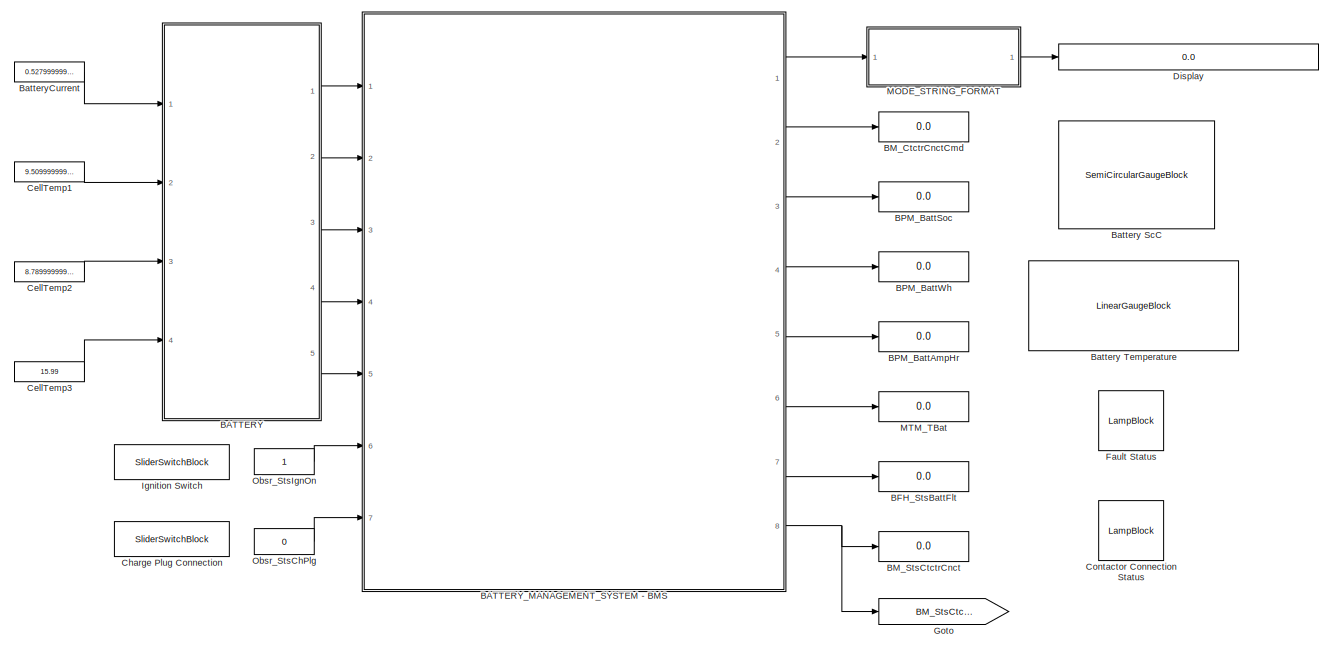
[diagram: root canvas - part 1/2, most of the canvas]
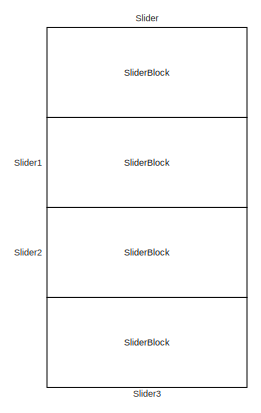
[diagram: root canvas - part 2/2, middle left region]
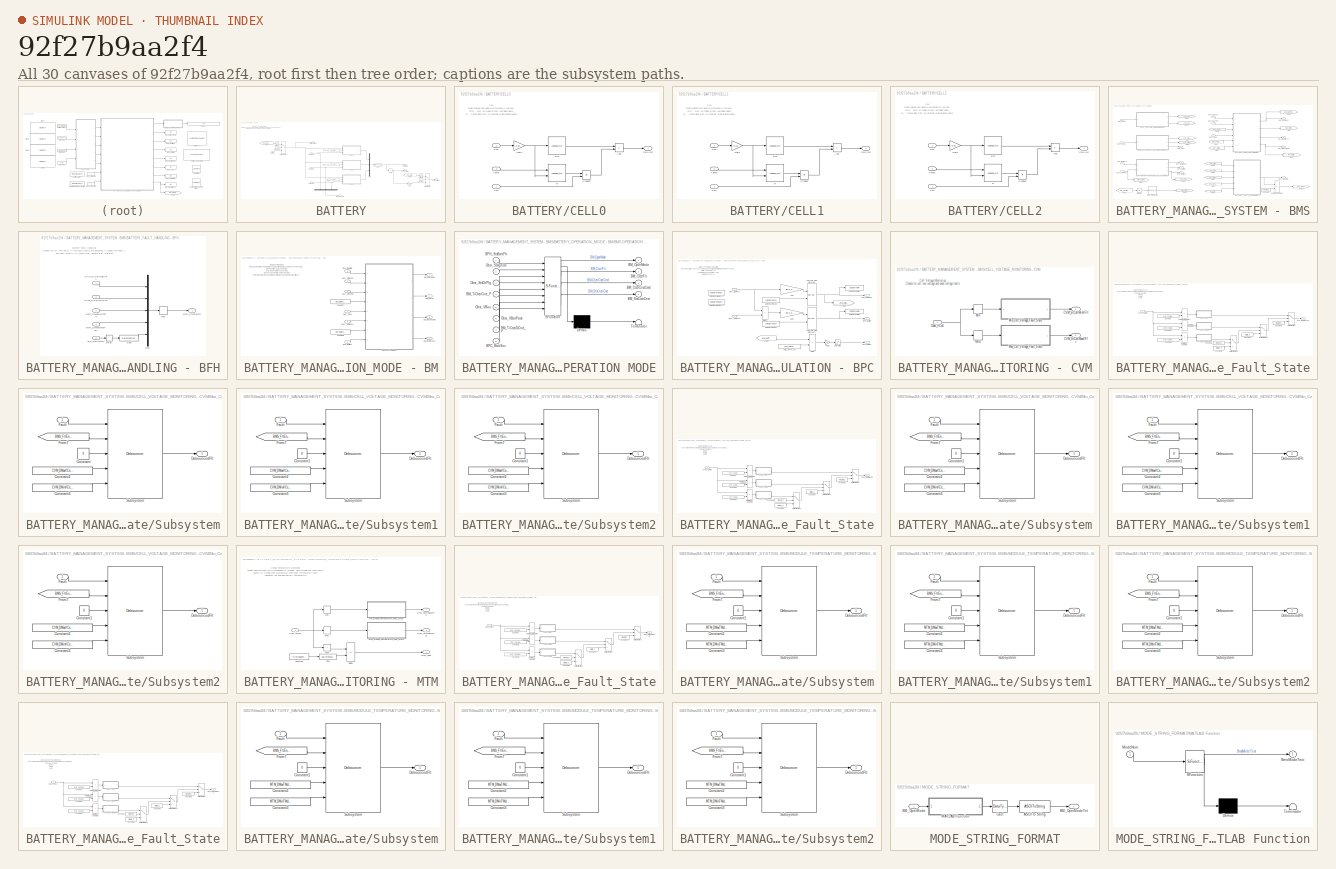
[diagram: thumbnail index - all 30 canvases of the model, root first then tree order]
MODEL slx_92f27b9aa2f4
KIND model
CONFIG AbsTol = auto
CONFIG EnableMultiTasking = off
CONFIG FixedStep = 1
CONFIG MaxStep = auto
CONFIG MinStep = auto
CONFIG RelTol = 1e-3
CONFIG SampleTimeConstraint = Unconstrained
CONFIG SolverName = FixedStepDiscrete
CONFIG StartTime = 0.0
CONFIG StopTime = inf
BLOCK [SubSystem] BATTERY
  Ports = [4, 5]
  RequestExecContextInheritance = off
BLOCK [Inport] BATTERY/BattCurr
BLOCK [Outport] BATTERY/BatteryCurrent
  Port = 5
  VectorParamsAs1DForOutWhenUnconnected = off
BLOCK [Outport] BATTERY/BusVoltage
  Port = 3
  VectorParamsAs1DForOutWhenUnconnected = off
BLOCK [SubSystem] BATTERY/CELL0
  Ports = [3, 1]
  RequestExecContextInheritance = off
BLOCK [Sum] BATTERY/CELL0/Add
  IconShape = rectangular
  Inputs = +-
  Ports = [2, 1]
BLOCK [Outport] BATTERY/CELL0/CellVolt
  VectorParamsAs1DForOutWhenUnconnected = off
BLOCK [Inport] BATTERY/CELL0/Curr
BLOCK [Lookup_n-D] BATTERY/CELL0/Em
  BreakpointsForDimension1 = CapLUTBp
  ExtrapMethod = Clip
  InputPortMap = u0
  InternalRulePriority = Speed
  NumberOfTableDimensions = 1
  Ports = [1, 1]
  RndMeth = Simplest
  Table = Em
  UseLastTableValue = on
BLOCK [Gain] BATTERY/CELL0/Gain
  Gain = 0.01
  OutDataTypeStr = double
BLOCK [Product] BATTERY/CELL0/Product
  Ports = [2, 1]
BLOCK [Lookup_n-D] BATTERY/CELL0/R
  BreakpointsForDimension1 = BattTempBp
  BreakpointsForDimension2 = CapSOCBp
  ExtrapMethod = Clip
  InputPortMap = u0,u1
  InternalRulePriority = Speed
  Ports = [2, 1]
  RndMeth = Simplest
  Table = RInt
  UseLastTableValue = on
BLOCK [Inport] BATTERY/CELL0/SoC
  Port = 2
BLOCK [Inport] BATTERY/CELL0/Temp
  Port = 3
BLOCK [SubSystem] BATTERY/CELL1
  Ports = [3, 1]
  RequestExecContextInheritance = off
BLOCK [Sum] BATTERY/CELL1/Add
  IconShape = rectangular
  Inputs = +-
  Ports = [2, 1]
BLOCK [Outport] BATTERY/CELL1/CellVolt
  VectorParamsAs1DForOutWhenUnconnected = off
BLOCK [Inport] BATTERY/CELL1/Curr
BLOCK [Lookup_n-D] BATTERY/CELL1/Em
  BreakpointsForDimension1 = CapLUTBp
  InputPortMap = u0
  InternalRulePriority = Speed
  NumberOfTableDimensions = 1
  Ports = [1, 1]
  RndMeth = Simplest
  Table = Em
BLOCK [Gain] BATTERY/CELL1/Gain
  Gain = 0.01
  OutDataTypeStr = double
BLOCK [Product] BATTERY/CELL1/Product
  Ports = [2, 1]
BLOCK [Lookup_n-D] BATTERY/CELL1/R
  BreakpointsForDimension1 = BattTempBp
  BreakpointsForDimension2 = CapSOCBp
  InputPortMap = u0,u1
  InternalRulePriority = Speed
  Ports = [2, 1]
  RndMeth = Simplest
  Table = RInt
BLOCK [Inport] BATTERY/CELL1/SoC
  Port = 2
BLOCK [Inport] BATTERY/CELL1/Temp
  Port = 3
BLOCK [SubSystem] BATTERY/CELL2
  Ports = [3, 1]
  RequestExecContextInheritance = off
BLOCK [Sum] BATTERY/CELL2/Add
  IconShape = rectangular
  Inputs = +-
  Ports = [2, 1]
BLOCK [Outport] BATTERY/CELL2/CellVolt
  VectorParamsAs1DForOutWhenUnconnected = off
BLOCK [Inport] BATTERY/CELL2/Curr
BLOCK [Lookup_n-D] BATTERY/CELL2/Em
  BreakpointsForDimension1 = CapLUTBp
  InputPortMap = u0
  InternalRulePriority = Speed
  NumberOfTableDimensions = 1
  Ports = [1, 1]
  RndMeth = Simplest
  Table = Em
BLOCK [Gain] BATTERY/CELL2/Gain
  Gain = 0.01
  OutDataTypeStr = double
BLOCK [Product] BATTERY/CELL2/Product
  Ports = [2, 1]
BLOCK [Lookup_n-D] BATTERY/CELL2/R
  BreakpointsForDimension1 = BattTempBp
  BreakpointsForDimension2 = CapSOCBp
  InputPortMap = u0,u1
  InternalRulePriority = Speed
  Ports = [2, 1]
  RndMeth = Simplest
  Table = RInt
BLOCK [Inport] BATTERY/CELL2/SoC
  Port = 2
BLOCK [Inport] BATTERY/CELL2/Temp
  Port = 3
BLOCK [DataTypeConversion] BATTERY/Cast
  OutDataTypeStr = single
  RndMeth = Floor
  SaturateOnIntegerOverflow = off
BLOCK [Inport] BATTERY/CellTemp1
  Port = 2
BLOCK [Inport] BATTERY/CellTemp2
  Port = 3
BLOCK [Inport] BATTERY/CellTemp3
  Port = 4
BLOCK [Outport] BATTERY/CellVoltArray
  VectorParamsAs1DForOutWhenUnconnected = off
BLOCK [Constant] BATTERY/Constant
  Value = 0
BLOCK [Constant] BATTERY/Constant1
  Value = 0
BLOCK [From] BATTERY/From
  GotoTag = BM_StsCtctrCnct
  TagVisibility = global
BLOCK [From] BATTERY/From1
  GotoTag = BPC_BattSoc
  TagVisibility = global
BLOCK [From] BATTERY/From2
  GotoTag = BM_CtctrCnctCmd
  TagVisibility = global
BLOCK [From] BATTERY/From3
  GotoTag = BPC_BattSoc
  TagVisibility = global
BLOCK [From] BATTERY/From4
  GotoTag = BPC_BattSoc
  TagVisibility = global
BLOCK [Gain] BATTERY/Gain
  Gain = 0.99
  OutDataTypeStr = single
BLOCK [Outport] BATTERY/ModuleTemp
  Port = 4
  VectorParamsAs1DForOutWhenUnconnected = off
BLOCK [MultiPortSwitch] BATTERY/Multiport Switch
  DataPortOrder = Zero-based contiguous
  InputSameDT = off
  Inputs = 2
  OutDataTypeStr = single
  Ports = [3, 1]
  SaturateOnIntegerOverflow = off
  zeroidx = on
BLOCK [MultiPortSwitch] BATTERY/Multiport Switch1
  DataPortOrder = Zero-based contiguous
  InputSameDT = off
  Inputs = 2
  Ports = [3, 1]
  SaturateOnIntegerOverflow = off
  zeroidx = on
BLOCK [Mux] BATTERY/Mux
  DisplayOption = bar
  Inputs = 3
  Ports = [3, 1]
BLOCK [Mux] BATTERY/Mux1
  DisplayOption = bar
  Inputs = 3
  NameLocation = left
  Ports = [3, 1]
BLOCK [Outport] BATTERY/PackVoltage
  Port = 2
  VectorParamsAs1DForOutWhenUnconnected = off
BLOCK [Sum] BATTERY/Sum
  AccumDataTypeStr = single
  IconShape = rectangular
  Inputs = 1
  Ports = [1, 1]
BLOCK [UnitDelay] BATTERY/Unit Delay
  HasFrameUpgradeWarning = on
  SampleTime = -1
BLOCK [UnitDelay] BATTERY/Unit Delay1
  HasFrameUpgradeWarning = on
  SampleTime = -1
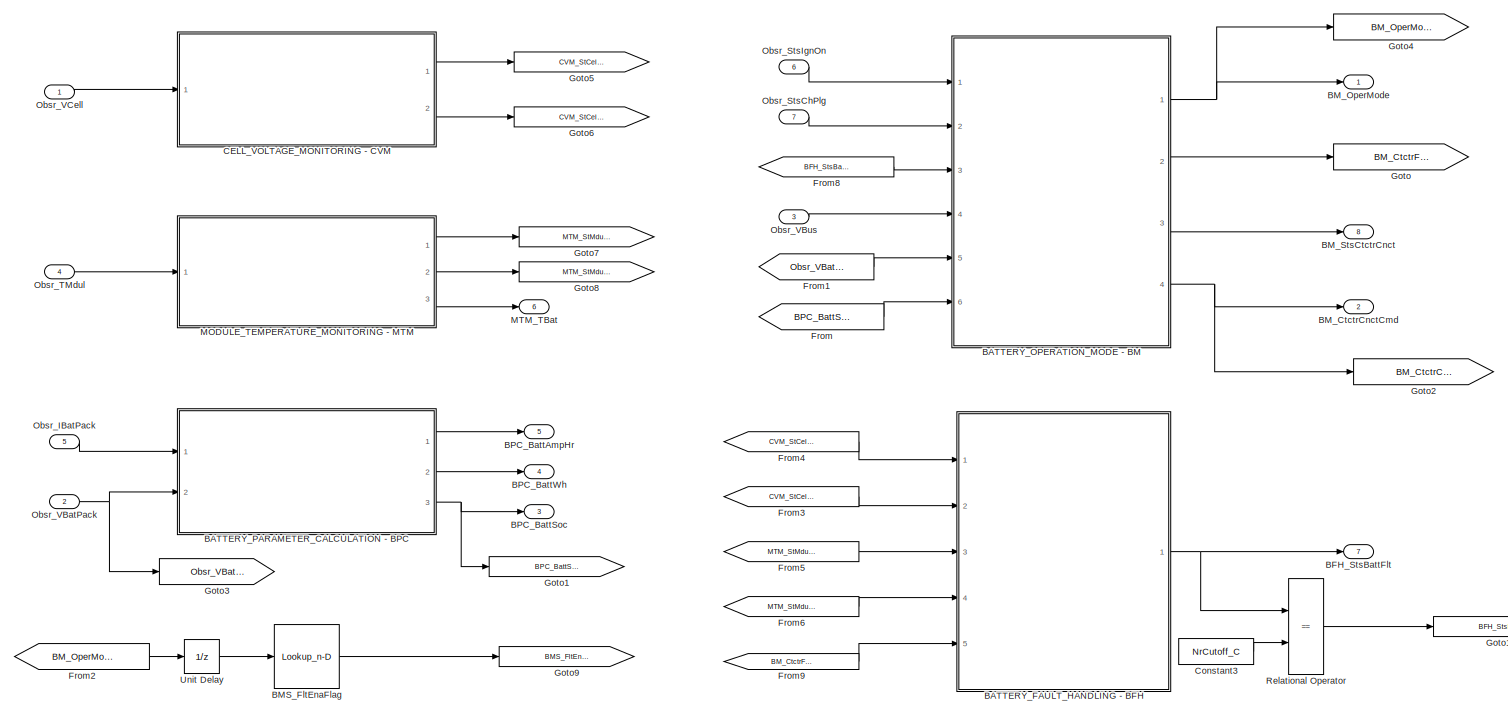
[diagram: BATTERY_MANAGEMENT_SYSTEM - BMS - part 1/2, most of the canvas]
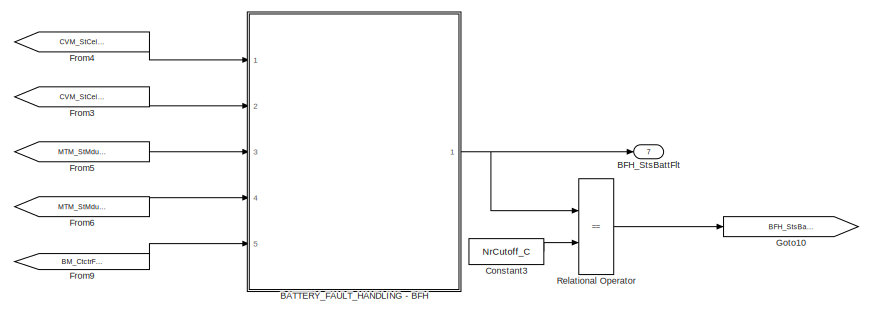
[diagram: BATTERY_MANAGEMENT_SYSTEM - BMS - part 2/2, bottom right region]
BLOCK [SubSystem] BATTERY_MANAGEMENT_SYSTEM - BMS
  Ports = [7, 8]
  RequestExecContextInheritance = off
BLOCK [SubSystem] BATTERY_MANAGEMENT_SYSTEM - BMS/BATTERY_FAULT_HANDLING - BFH
  Ports = [5, 1]
  RequestExecContextInheritance = off
BLOCK [Outport] BATTERY_MANAGEMENT_SYSTEM - BMS/BATTERY_FAULT_HANDLING - BFH/BFH_StsBattFlt
  VectorParamsAs1DForOutWhenUnconnected = off
BLOCK [Inport] BATTERY_MANAGEMENT_SYSTEM - BMS/BATTERY_FAULT_HANDLING - BFH/BM_HvCtctrFlt
  Port = 5
BLOCK [Inport] BATTERY_MANAGEMENT_SYSTEM - BMS/BATTERY_FAULT_HANDLING - BFH/CVM_StCellMaxVFlt
BLOCK [Inport] BATTERY_MANAGEMENT_SYSTEM - BMS/BATTERY_FAULT_HANDLING - BFH/CVM_StCellMinVFlt
  Port = 2
BLOCK [DataTypeConversion] BATTERY_MANAGEMENT_SYSTEM - BMS/BATTERY_FAULT_HANDLING - BFH/Cast
  OutDataTypeStr = uint8
  RndMeth = Floor
  SaturateOnIntegerOverflow = off
BLOCK [Delay] BATTERY_MANAGEMENT_SYSTEM - BMS/BATTERY_FAULT_HANDLING - BFH/Delay
  DelayLength = 1
  InputPortMap = u0
  Ports = [1, 1]
BLOCK [Inport] BATTERY_MANAGEMENT_SYSTEM - BMS/BATTERY_FAULT_HANDLING - BFH/MTM_StMdulMaxTFlt
  Port = 4
BLOCK [Inport] BATTERY_MANAGEMENT_SYSTEM - BMS/BATTERY_FAULT_HANDLING - BFH/MTM_StMdulMinTFlt
  Port = 3
BLOCK [MinMax] BATTERY_MANAGEMENT_SYSTEM - BMS/BATTERY_FAULT_HANDLING - BFH/Max
  Function = max
  OutDataTypeStr = uint8
  Ports = [1, 1]
BLOCK [Mux] BATTERY_MANAGEMENT_SYSTEM - BMS/BATTERY_FAULT_HANDLING - BFH/Mux
  DisplayOption = bar
  Inputs = 5
  Ports = [5, 1]
BLOCK [SubSystem] BATTERY_MANAGEMENT_SYSTEM - BMS/BATTERY_OPERATION_MODE - BM
  Ports = [6, 4]
  RequestExecContextInheritance = off
BLOCK [Inport] BATTERY_MANAGEMENT_SYSTEM - BMS/BATTERY_OPERATION_MODE - BM/BFH_StsBattFlt
  Port = 3
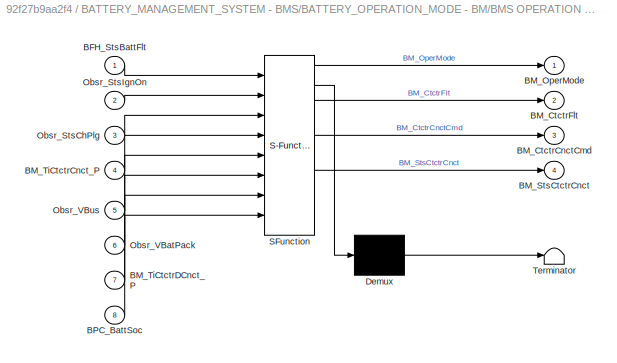
BLOCK [SubSystem] BATTERY_MANAGEMENT_SYSTEM - BMS/BATTERY_OPERATION_MODE - BM/BMS OPERATION MODE
  ErrorFcn = Stateflow.Translate.translate
  PermitHierarchicalResolution = ExplicitOnly
  Ports = [8, 4]
  RequestExecContextInheritance = off
  SFBlockType = Chart
  TreatAsAtomicUnit = on
BLOCK [Demux] BATTERY_MANAGEMENT_SYSTEM - BMS/BATTERY_OPERATION_MODE - BM/BMS OPERATION MODE/ Demux 
  Outputs = 1
  Ports = [1, 1]
BLOCK [S-Function] BATTERY_MANAGEMENT_SYSTEM - BMS/BATTERY_OPERATION_MODE - BM/BMS OPERATION MODE/ SFunction 
  EnableBusSupport = on
  FunctionName = sf_sfun
  PortCounts = [8 5]
  Ports = [8, 5]
  SFcnIsStateOwnerBlock = off
  SFunctionDeploymentMode = off
  Tag = Stateflow S-Function 3
BLOCK [Terminator] BATTERY_MANAGEMENT_SYSTEM - BMS/BATTERY_OPERATION_MODE - BM/BMS OPERATION MODE/ Terminator 
BLOCK [Inport] BATTERY_MANAGEMENT_SYSTEM - BMS/BATTERY_OPERATION_MODE - BM/BMS OPERATION MODE/BFH_StsBattFlt
BLOCK [Outport] BATTERY_MANAGEMENT_SYSTEM - BMS/BATTERY_OPERATION_MODE - BM/BMS OPERATION MODE/BM_CtctrCnctCmd
  Port = 3
  VectorParamsAs1DForOutWhenUnconnected = off
BLOCK [Outport] BATTERY_MANAGEMENT_SYSTEM - BMS/BATTERY_OPERATION_MODE - BM/BMS OPERATION MODE/BM_CtctrFlt
  Port = 2
  VectorParamsAs1DForOutWhenUnconnected = off
BLOCK [Outport] BATTERY_MANAGEMENT_SYSTEM - BMS/BATTERY_OPERATION_MODE - BM/BMS OPERATION MODE/BM_OperMode
  VectorParamsAs1DForOutWhenUnconnected = off
BLOCK [Outport] BATTERY_MANAGEMENT_SYSTEM - BMS/BATTERY_OPERATION_MODE - BM/BMS OPERATION MODE/BM_StsCtctrCnct
  Port = 4
  VectorParamsAs1DForOutWhenUnconnected = off
BLOCK [Inport] BATTERY_MANAGEMENT_SYSTEM - BMS/BATTERY_OPERATION_MODE - BM/BMS OPERATION MODE/BM_TiCtctrCnct_P
  Port = 4
BLOCK [Inport] BATTERY_MANAGEMENT_SYSTEM - BMS/BATTERY_OPERATION_MODE - BM/BMS OPERATION MODE/BM_TiCtctrDCnct_P
  Port = 7
BLOCK [Inport] BATTERY_MANAGEMENT_SYSTEM - BMS/BATTERY_OPERATION_MODE - BM/BMS OPERATION MODE/BPC_BattSoc
  Port = 8
BLOCK [Inport] BATTERY_MANAGEMENT_SYSTEM - BMS/BATTERY_OPERATION_MODE - BM/BMS OPERATION MODE/Obsr_StsChPlg
  Port = 3
BLOCK [Inport] BATTERY_MANAGEMENT_SYSTEM - BMS/BATTERY_OPERATION_MODE - BM/BMS OPERATION MODE/Obsr_StsIgnOn
  Port = 2
BLOCK [Inport] BATTERY_MANAGEMENT_SYSTEM - BMS/BATTERY_OPERATION_MODE - BM/BMS OPERATION MODE/Obsr_VBatPack
  Port = 6
BLOCK [Inport] BATTERY_MANAGEMENT_SYSTEM - BMS/BATTERY_OPERATION_MODE - BM/BMS OPERATION MODE/Obsr_VBus
  Port = 5
BLOCK [Outport] BATTERY_MANAGEMENT_SYSTEM - BMS/BATTERY_OPERATION_MODE - BM/BM_CtctrCnctCmd
  Port = 4
  VectorParamsAs1DForOutWhenUnconnected = off
BLOCK [Outport] BATTERY_MANAGEMENT_SYSTEM - BMS/BATTERY_OPERATION_MODE - BM/BM_CtctrFlt
  Port = 2
  VectorParamsAs1DForOutWhenUnconnected = off
BLOCK [Outport] BATTERY_MANAGEMENT_SYSTEM - BMS/BATTERY_OPERATION_MODE - BM/BM_OperMode
  VectorParamsAs1DForOutWhenUnconnected = off
BLOCK [Outport] BATTERY_MANAGEMENT_SYSTEM - BMS/BATTERY_OPERATION_MODE - BM/BM_StsCtctrCnct
  Port = 3
  VectorParamsAs1DForOutWhenUnconnected = off
BLOCK [Inport] BATTERY_MANAGEMENT_SYSTEM - BMS/BATTERY_OPERATION_MODE - BM/BPC_BattSoc
  Port = 6
BLOCK [Constant] BATTERY_MANAGEMENT_SYSTEM - BMS/BATTERY_OPERATION_MODE - BM/Constant
  Value = BM_TiCtctrCnct_P
BLOCK [Constant] BATTERY_MANAGEMENT_SYSTEM - BMS/BATTERY_OPERATION_MODE - BM/Constant1
  Value = BM_TiCtctrDCnct_P
BLOCK [Inport] BATTERY_MANAGEMENT_SYSTEM - BMS/BATTERY_OPERATION_MODE - BM/Obsr_StsChPlg
  Port = 2
BLOCK [Inport] BATTERY_MANAGEMENT_SYSTEM - BMS/BATTERY_OPERATION_MODE - BM/Obsr_StsIgnOn
BLOCK [Inport] BATTERY_MANAGEMENT_SYSTEM - BMS/BATTERY_OPERATION_MODE - BM/Obsr_VBatPack
  Port = 5
BLOCK [Inport] BATTERY_MANAGEMENT_SYSTEM - BMS/BATTERY_OPERATION_MODE - BM/Obsr_VBus
  Port = 4
BLOCK [SubSystem] BATTERY_MANAGEMENT_SYSTEM - BMS/BATTERY_PARAMETER_CALCULATION - BPC
  Ports = [2, 3]
  RequestExecContextInheritance = off
BLOCK [Constant] BATTERY_MANAGEMENT_SYSTEM - BMS/BATTERY_PARAMETER_CALCULATION - BPC/BMS_TiProc_C2
  Value = BPC_BattTotalCharge_P
BLOCK [Outport] BATTERY_MANAGEMENT_SYSTEM - BMS/BATTERY_PARAMETER_CALCULATION - BPC/BPC_BattAmpHr
  VectorParamsAs1DForOutWhenUnconnected = off
BLOCK [Outport] BATTERY_MANAGEMENT_SYSTEM - BMS/BATTERY_PARAMETER_CALCULATION - BPC/BPC_BattSoc
  Port = 3
  VectorParamsAs1DForOutWhenUnconnected = off
BLOCK [Outport] BATTERY_MANAGEMENT_SYSTEM - BMS/BATTERY_PARAMETER_CALCULATION - BPC/BPC_BattWh
  Port = 2
  VectorParamsAs1DForOutWhenUnconnected = off
BLOCK [DataStoreMemory] BATTERY_MANAGEMENT_SYSTEM - BMS/BATTERY_PARAMETER_CALCULATION - BPC/Data Store Memory1
  DataStoreName = BPC_BattAmpHr
  InitialValue = 48*0.985
  OutDataTypeStr = double
  ReadBeforeWriteMsg = warning
  ShowAdditionalParam = off
  WriteAfterReadMsg = warning
  WriteAfterWriteMsg = warning
BLOCK [DataStoreMemory] BATTERY_MANAGEMENT_SYSTEM - BMS/BATTERY_PARAMETER_CALCULATION - BPC/Data Store Memory2
  DataStoreName = BPC_BattWHr
  InitialValue = 48*3*4.22*0.985
  OutDataTypeStr = double
  ReadBeforeWriteMsg = warning
  ShowAdditionalParam = off
  WriteAfterReadMsg = warning
  WriteAfterWriteMsg = warning
BLOCK [DataStoreRead] BATTERY_MANAGEMENT_SYSTEM - BMS/BATTERY_PARAMETER_CALCULATION - BPC/Data Store Read1
  DataStoreName = BPC_BattWHr
  IndexOptions = Index vector (dialog)
  Indices = 1
  OutputSizes = 1
  Ports = [0, 1]
BLOCK [DataStoreRead] BATTERY_MANAGEMENT_SYSTEM - BMS/BATTERY_PARAMETER_CALCULATION - BPC/Data Store Read2
  DataStoreName = BPC_BattAmpHr
  IndexOptions = Index vector (dialog)
  Indices = 1
  OutputSizes = 1
  Ports = [0, 1]
BLOCK [DataStoreWrite] BATTERY_MANAGEMENT_SYSTEM - BMS/BATTERY_PARAMETER_CALCULATION - BPC/Data Store Write1
  DataStoreName = BPC_BattWHr
  IndexOptions = Index vector (dialog)
  Indices = 1
  OutputSizes = 1
  Ports = [1]
BLOCK [DataStoreWrite] BATTERY_MANAGEMENT_SYSTEM - BMS/BATTERY_PARAMETER_CALCULATION - BPC/Data Store Write2
  DataStoreName = BPC_BattAmpHr
  IndexOptions = Index vector (dialog)
  Indices = 1
  OutputSizes = 1
  Ports = [1]
BLOCK [DiscreteIntegrator] BATTERY_MANAGEMENT_SYSTEM - BMS/BATTERY_PARAMETER_CALCULATION - BPC/Discrete-Time Integrator
  ICPrevOutput = DiscIntNeverNeededParam
  ICPrevScaledInput = DiscIntNeverNeededParam
  InitialConditionSetting = Auto
  InitialConditionSource = external
  LimitOutput = on
  LowerSaturationLimit = 0
  Ports = [2, 1]
  SampleTime = -1
  UpperSaturationLimit = BPC_BattTotalCharge_P
BLOCK [DiscreteIntegrator] BATTERY_MANAGEMENT_SYSTEM - BMS/BATTERY_PARAMETER_CALCULATION - BPC/Discrete-Time Integrator1
  ICPrevOutput = DiscIntNeverNeededParam
  ICPrevScaledInput = DiscIntNeverNeededParam
  InitialConditionSetting = Auto
  InitialConditionSource = external
  LimitOutput = on
  LowerSaturationLimit = 0
  Ports = [2, 1]
  SampleTime = -1
  UpperSaturationLimit = BPC_BattTotalEnergy_P
BLOCK [Product] BATTERY_MANAGEMENT_SYSTEM - BMS/BATTERY_PARAMETER_CALCULATION - BPC/Divide
  Inputs = */
  OutDataTypeStr = single
  Ports = [2, 1]
BLOCK [From] BATTERY_MANAGEMENT_SYSTEM - BMS/BATTERY_PARAMETER_CALCULATION - BPC/From
  GotoTag = BPM_BattCharge
BLOCK [Gain] BATTERY_MANAGEMENT_SYSTEM - BMS/BATTERY_PARAMETER_CALCULATION - BPC/Gain
  Gain = -BMS_TiSample_C/3600
  OutDataTypeStr = double
BLOCK [Gain] BATTERY_MANAGEMENT_SYSTEM - BMS/BATTERY_PARAMETER_CALCULATION - BPC/Gain1
  Gain = -BMS_TiSample_C/3600
  OutDataTypeStr = double
BLOCK [Gain] BATTERY_MANAGEMENT_SYSTEM - BMS/BATTERY_PARAMETER_CALCULATION - BPC/Gain2
  Gain = 100
  OutMax = [100]
  OutMin = [0]
BLOCK [Goto] BATTERY_MANAGEMENT_SYSTEM - BMS/BATTERY_PARAMETER_CALCULATION - BPC/Goto
  GotoTag = BPM_BattCharge
BLOCK [Product] BATTERY_MANAGEMENT_SYSTEM - BMS/BATTERY_PARAMETER_CALCULATION - BPC/Multiply1
  Ports = [2, 1]
BLOCK [Inport] BATTERY_MANAGEMENT_SYSTEM - BMS/BATTERY_PARAMETER_CALCULATION - BPC/Obsr_IBatPack
BLOCK [Inport] BATTERY_MANAGEMENT_SYSTEM - BMS/BATTERY_PARAMETER_CALCULATION - BPC/Obsr_VBatPack
  Port = 2
BLOCK [Saturate] BATTERY_MANAGEMENT_SYSTEM - BMS/BATTERY_PARAMETER_CALCULATION - BPC/Saturation
  LowerLimit = 0
  UpperLimit = 100
BLOCK [Outport] BATTERY_MANAGEMENT_SYSTEM - BMS/BFH_StsBattFlt
  Port = 7
  VectorParamsAs1DForOutWhenUnconnected = off
BLOCK [Lookup_n-D] BATTERY_MANAGEMENT_SYSTEM - BMS/BMS_FltEnaFlag
  BreakpointsForDimension1 = BMS_ModeEnaFltChk
  DiagnosticForOutOfRangeInput = Error
  ExtrapMethod = Clip
  InputPortMap = u0
  InternalRulePriority = Speed
  InterpMethod = Nearest
  NumberOfTableDimensions = 1
  Ports = [1, 1]
  RndMeth = Simplest
  Table = BMS_EnaFltSts
BLOCK [Outport] BATTERY_MANAGEMENT_SYSTEM - BMS/BM_CtctrCnctCmd
  Port = 2
  VectorParamsAs1DForOutWhenUnconnected = off
BLOCK [Outport] BATTERY_MANAGEMENT_SYSTEM - BMS/BM_OperMode
  VectorParamsAs1DForOutWhenUnconnected = off
BLOCK [Outport] BATTERY_MANAGEMENT_SYSTEM - BMS/BM_StsCtctrCnct
  Port = 8
  VectorParamsAs1DForOutWhenUnconnected = off
BLOCK [Outport] BATTERY_MANAGEMENT_SYSTEM - BMS/BPC_BattAmpHr
  Port = 5
  VectorParamsAs1DForOutWhenUnconnected = off
BLOCK [Outport] BATTERY_MANAGEMENT_SYSTEM - BMS/BPC_BattSoc
  Port = 3
  VectorParamsAs1DForOutWhenUnconnected = off
BLOCK [Outport] BATTERY_MANAGEMENT_SYSTEM - BMS/BPC_BattWh
  Port = 4
  VectorParamsAs1DForOutWhenUnconnected = off
BLOCK [SubSystem] BATTERY_MANAGEMENT_SYSTEM - BMS/CELL_VOLTAGE_MONITORING - CVM
  Ports = [1, 2]
  RequestExecContextInheritance = off
BLOCK [Outport] BATTERY_MANAGEMENT_SYSTEM - BMS/CELL_VOLTAGE_MONITORING - CVM/CVM_StCellMaxVFlt
  Port = 2
  VectorParamsAs1DForOutWhenUnconnected = off
BLOCK [Outport] BATTERY_MANAGEMENT_SYSTEM - BMS/CELL_VOLTAGE_MONITORING - CVM/CVM_StCellMinVFlt
  VectorParamsAs1DForOutWhenUnconnected = off
BLOCK [SubSystem] BATTERY_MANAGEMENT_SYSTEM - BMS/CELL_VOLTAGE_MONITORING - CVM/Max_Cell_Voltage_Fault_State
  Ports = [1, 1]
  RequestExecContextInheritance = off
BLOCK [Outport] BATTERY_MANAGEMENT_SYSTEM - BMS/CELL_VOLTAGE_MONITORING - CVM/Max_Cell_Voltage_Fault_State/CVM_StCellMaxVFlt
  VectorParamsAs1DForOutWhenUnconnected = off
BLOCK [Inport] BATTERY_MANAGEMENT_SYSTEM - BMS/CELL_VOLTAGE_MONITORING - CVM/Max_Cell_Voltage_Fault_State/CVM_VCellMin
BLOCK [Constant] BATTERY_MANAGEMENT_SYSTEM - BMS/CELL_VOLTAGE_MONITORING - CVM/Max_Cell_Voltage_Fault_State/Constant
  Value = CVM_VCellMaxCutoffTh_P
BLOCK [Constant] BATTERY_MANAGEMENT_SYSTEM - BMS/CELL_VOLTAGE_MONITORING - CVM/Max_Cell_Voltage_Fault_State/Constant1
  Value = CVM_VCellMaxDrtdTh_P
BLOCK [Constant] BATTERY_MANAGEMENT_SYSTEM - BMS/CELL_VOLTAGE_MONITORING - CVM/Max_Cell_Voltage_Fault_State/Constant2
  Value = CVM_VCellMaxWarnTh_P
BLOCK [Constant] BATTERY_MANAGEMENT_SYSTEM - BMS/CELL_VOLTAGE_MONITORING - CVM/Max_Cell_Voltage_Fault_State/Constant3
  Value = NrCutoff_C
BLOCK [Constant] BATTERY_MANAGEMENT_SYSTEM - BMS/CELL_VOLTAGE_MONITORING - CVM/Max_Cell_Voltage_Fault_State/Constant4
  Value = NrDrtd_C
BLOCK [Constant] BATTERY_MANAGEMENT_SYSTEM - BMS/CELL_VOLTAGE_MONITORING - CVM/Max_Cell_Voltage_Fault_State/Constant5
  Value = NrWarn_C
BLOCK [Constant] BATTERY_MANAGEMENT_SYSTEM - BMS/CELL_VOLTAGE_MONITORING - CVM/Max_Cell_Voltage_Fault_State/Constant6
  Value = NrNoFlt_C
BLOCK [MultiPortSwitch] BATTERY_MANAGEMENT_SYSTEM - BMS/CELL_VOLTAGE_MONITORING - CVM/Max_Cell_Voltage_Fault_State/Multiport Switch
  DataPortOrder = Zero-based contiguous
  InputSameDT = off
  Inputs = 2
  Ports = [3, 1]
  SaturateOnIntegerOverflow = off
  zeroidx = on
BLOCK [MultiPortSwitch] BATTERY_MANAGEMENT_SYSTEM - BMS/CELL_VOLTAGE_MONITORING - CVM/Max_Cell_Voltage_Fault_State/Multiport Switch1
  DataPortOrder = Zero-based contiguous
  InputSameDT = off
  Inputs = 2
  Ports = [3, 1]
  SaturateOnIntegerOverflow = off
  zeroidx = on
BLOCK [MultiPortSwitch] BATTERY_MANAGEMENT_SYSTEM - BMS/CELL_VOLTAGE_MONITORING - CVM/Max_Cell_Voltage_Fault_State/Multiport Switch2
  DataPortOrder = Zero-based contiguous
  InputSameDT = off
  Inputs = 2
  Ports = [3, 1]
  SaturateOnIntegerOverflow = off
  zeroidx = on
BLOCK [RelationalOperator] BATTERY_MANAGEMENT_SYSTEM - BMS/CELL_VOLTAGE_MONITORING - CVM/Max_Cell_Voltage_Fault_State/Relational Operator
  InputSameDT = off
  Operator = >
  OutDataTypeStr = boolean
  Ports = [2, 1]
  RndMeth = Simplest
BLOCK [RelationalOperator] BATTERY_MANAGEMENT_SYSTEM - BMS/CELL_VOLTAGE_MONITORING - CVM/Max_Cell_Voltage_Fault_State/Relational Operator1
  InputSameDT = off
  Operator = >
  OutDataTypeStr = boolean
  Ports = [2, 1]
  RndMeth = Simplest
BLOCK [RelationalOperator] BATTERY_MANAGEMENT_SYSTEM - BMS/CELL_VOLTAGE_MONITORING - CVM/Max_Cell_Voltage_Fault_State/Relational Operator2
  InputSameDT = off
  Operator = >
  OutDataTypeStr = boolean
  Ports = [2, 1]
  RndMeth = Simplest
BLOCK [SubSystem] BATTERY_MANAGEMENT_SYSTEM - BMS/CELL_VOLTAGE_MONITORING - CVM/Max_Cell_Voltage_Fault_State/Subsystem
  Ports = [1, 1]
  RequestExecContextInheritance = off
BLOCK [Constant] BATTERY_MANAGEMENT_SYSTEM - BMS/CELL_VOLTAGE_MONITORING - CVM/Max_Cell_Voltage_Fault_State/Subsystem/Constant
  Value = 0
BLOCK [Constant] BATTERY_MANAGEMENT_SYSTEM - BMS/CELL_VOLTAGE_MONITORING - CVM/Max_Cell_Voltage_Fault_State/Subsystem/Constant2
  Value = CVM_DMaxVCellMaxCutoff_P
BLOCK [Constant] BATTERY_MANAGEMENT_SYSTEM - BMS/CELL_VOLTAGE_MONITORING - CVM/Max_Cell_Voltage_Fault_State/Subsystem/Constant3
  Value = CVM_DMinVCellMaxCutoff_P
BLOCK [Outport] BATTERY_MANAGEMENT_SYSTEM - BMS/CELL_VOLTAGE_MONITORING - CVM/Max_Cell_Voltage_Fault_State/Subsystem/DebouncedFlt
  VectorParamsAs1DForOutWhenUnconnected = off
BLOCK [Inport] BATTERY_MANAGEMENT_SYSTEM - BMS/CELL_VOLTAGE_MONITORING - CVM/Max_Cell_Voltage_Fault_State/Subsystem/Fault
BLOCK [From] BATTERY_MANAGEMENT_SYSTEM - BMS/CELL_VOLTAGE_MONITORING - CVM/Max_Cell_Voltage_Fault_State/Subsystem/From7
  GotoTag = BMS_FltEnaFlag
  TagVisibility = global
BLOCK [Reference] BATTERY_MANAGEMENT_SYSTEM - BMS/CELL_VOLTAGE_MONITORING - CVM/Max_Cell_Voltage_Fault_State/Subsystem/Subsystem  REF=BMSLib/Debouncer
  Ports = [5, 1]
  SourceBlock = BMSLib/Debouncer
  SourceType = Debouncer
BLOCK [SubSystem] BATTERY_MANAGEMENT_SYSTEM - BMS/CELL_VOLTAGE_MONITORING - CVM/Max_Cell_Voltage_Fault_State/Subsystem1
  Ports = [1, 1]
  RequestExecContextInheritance = off
BLOCK [Constant] BATTERY_MANAGEMENT_SYSTEM - BMS/CELL_VOLTAGE_MONITORING - CVM/Max_Cell_Voltage_Fault_State/Subsystem1/Constant1
  Value = 0
BLOCK [Constant] BATTERY_MANAGEMENT_SYSTEM - BMS/CELL_VOLTAGE_MONITORING - CVM/Max_Cell_Voltage_Fault_State/Subsystem1/Constant2
  Value = CVM_DMaxVCellMaxDrtd_P
BLOCK [Constant] BATTERY_MANAGEMENT_SYSTEM - BMS/CELL_VOLTAGE_MONITORING - CVM/Max_Cell_Voltage_Fault_State/Subsystem1/Constant3
  Value = CVM_DMinVCellMaxDrtd_P
BLOCK [Outport] BATTERY_MANAGEMENT_SYSTEM - BMS/CELL_VOLTAGE_MONITORING - CVM/Max_Cell_Voltage_Fault_State/Subsystem1/DebouncedFlt
  VectorParamsAs1DForOutWhenUnconnected = off
BLOCK [Inport] BATTERY_MANAGEMENT_SYSTEM - BMS/CELL_VOLTAGE_MONITORING - CVM/Max_Cell_Voltage_Fault_State/Subsystem1/Fault
BLOCK [From] BATTERY_MANAGEMENT_SYSTEM - BMS/CELL_VOLTAGE_MONITORING - CVM/Max_Cell_Voltage_Fault_State/Subsystem1/From7
  GotoTag = BMS_FltEnaFlag
  TagVisibility = global
BLOCK [Reference] BATTERY_MANAGEMENT_SYSTEM - BMS/CELL_VOLTAGE_MONITORING - CVM/Max_Cell_Voltage_Fault_State/Subsystem1/Subsystem  REF=BMSLib/Debouncer
  Ports = [5, 1]
  SourceBlock = BMSLib/Debouncer
  SourceType = Debouncer
BLOCK [SubSystem] BATTERY_MANAGEMENT_SYSTEM - BMS/CELL_VOLTAGE_MONITORING - CVM/Max_Cell_Voltage_Fault_State/Subsystem2
  Ports = [1, 1]
  RequestExecContextInheritance = off
BLOCK [Constant] BATTERY_MANAGEMENT_SYSTEM - BMS/CELL_VOLTAGE_MONITORING - CVM/Max_Cell_Voltage_Fault_State/Subsystem2/Constant1
  Value = 0
BLOCK [Constant] BATTERY_MANAGEMENT_SYSTEM - BMS/CELL_VOLTAGE_MONITORING - CVM/Max_Cell_Voltage_Fault_State/Subsystem2/Constant2
  Value = CVM_DMaxVCellMaxWarn_P
BLOCK [Constant] BATTERY_MANAGEMENT_SYSTEM - BMS/CELL_VOLTAGE_MONITORING - CVM/Max_Cell_Voltage_Fault_State/Subsystem2/Constant3
  Value = CVM_DMinVCellMaxWarn_P
BLOCK [Outport] BATTERY_MANAGEMENT_SYSTEM - BMS/CELL_VOLTAGE_MONITORING - CVM/Max_Cell_Voltage_Fault_State/Subsystem2/DebouncedFlt
  VectorParamsAs1DForOutWhenUnconnected = off
BLOCK [Inport] BATTERY_MANAGEMENT_SYSTEM - BMS/CELL_VOLTAGE_MONITORING - CVM/Max_Cell_Voltage_Fault_State/Subsystem2/Fault
BLOCK [From] BATTERY_MANAGEMENT_SYSTEM - BMS/CELL_VOLTAGE_MONITORING - CVM/Max_Cell_Voltage_Fault_State/Subsystem2/From7
  GotoTag = BMS_FltEnaFlag
  TagVisibility = global
BLOCK [Reference] BATTERY_MANAGEMENT_SYSTEM - BMS/CELL_VOLTAGE_MONITORING - CVM/Max_Cell_Voltage_Fault_State/Subsystem2/Subsystem  REF=BMSLib/Debouncer
  Ports = [5, 1]
  SourceBlock = BMSLib/Debouncer
  SourceType = Debouncer
BLOCK [MinMax] BATTERY_MANAGEMENT_SYSTEM - BMS/CELL_VOLTAGE_MONITORING - CVM/Min
  Ports = [1, 1]
BLOCK [MinMax] BATTERY_MANAGEMENT_SYSTEM - BMS/CELL_VOLTAGE_MONITORING - CVM/Min1
  Function = max
  Ports = [1, 1]
BLOCK [SubSystem] BATTERY_MANAGEMENT_SYSTEM - BMS/CELL_VOLTAGE_MONITORING - CVM/Min_Cell_Voltage_Fault_State
  Ports = [1, 1]
  RequestExecContextInheritance = off
BLOCK [Outport] BATTERY_MANAGEMENT_SYSTEM - BMS/CELL_VOLTAGE_MONITORING - CVM/Min_Cell_Voltage_Fault_State/CVM_StCellMinVFlt
  VectorParamsAs1DForOutWhenUnconnected = off
BLOCK [Inport] BATTERY_MANAGEMENT_SYSTEM - BMS/CELL_VOLTAGE_MONITORING - CVM/Min_Cell_Voltage_Fault_State/CVM_VCellMin
BLOCK [Constant] BATTERY_MANAGEMENT_SYSTEM - BMS/CELL_VOLTAGE_MONITORING - CVM/Min_Cell_Voltage_Fault_State/Constant
  Value = CVM_VCellMinCutoffTh_P
BLOCK [Constant] BATTERY_MANAGEMENT_SYSTEM - BMS/CELL_VOLTAGE_MONITORING - CVM/Min_Cell_Voltage_Fault_State/Constant1
  Value = CVM_VCellMinDrtdTh_P
BLOCK [Constant] BATTERY_MANAGEMENT_SYSTEM - BMS/CELL_VOLTAGE_MONITORING - CVM/Min_Cell_Voltage_Fault_State/Constant2
  Value = CVM_VCellMinWarnTh_P
BLOCK [Constant] BATTERY_MANAGEMENT_SYSTEM - BMS/CELL_VOLTAGE_MONITORING - CVM/Min_Cell_Voltage_Fault_State/Constant3
  Value = NrCutoff_C
BLOCK [Constant] BATTERY_MANAGEMENT_SYSTEM - BMS/CELL_VOLTAGE_MONITORING - CVM/Min_Cell_Voltage_Fault_State/Constant4
  Value = NrDrtd_C
BLOCK [Constant] BATTERY_MANAGEMENT_SYSTEM - BMS/CELL_VOLTAGE_MONITORING - CVM/Min_Cell_Voltage_Fault_State/Constant5
  Value = NrWarn_C
BLOCK [Constant] BATTERY_MANAGEMENT_SYSTEM - BMS/CELL_VOLTAGE_MONITORING - CVM/Min_Cell_Voltage_Fault_State/Constant6
  Value = NrNoFlt_C
BLOCK [MultiPortSwitch] BATTERY_MANAGEMENT_SYSTEM - BMS/CELL_VOLTAGE_MONITORING - CVM/Min_Cell_Voltage_Fault_State/Multiport Switch
  DataPortOrder = Zero-based contiguous
  InputSameDT = off
  Inputs = 2
  Ports = [3, 1]
  SaturateOnIntegerOverflow = off
  zeroidx = on
BLOCK [MultiPortSwitch] BATTERY_MANAGEMENT_SYSTEM - BMS/CELL_VOLTAGE_MONITORING - CVM/Min_Cell_Voltage_Fault_State/Multiport Switch1
  DataPortOrder = Zero-based contiguous
  InputSameDT = off
  Inputs = 2
  Ports = [3, 1]
  SaturateOnIntegerOverflow = off
  zeroidx = on
BLOCK [MultiPortSwitch] BATTERY_MANAGEMENT_SYSTEM - BMS/CELL_VOLTAGE_MONITORING - CVM/Min_Cell_Voltage_Fault_State/Multiport Switch2
  DataPortOrder = Zero-based contiguous
  InputSameDT = off
  Inputs = 2
  Ports = [3, 1]
  SaturateOnIntegerOverflow = off
  zeroidx = on
BLOCK [RelationalOperator] BATTERY_MANAGEMENT_SYSTEM - BMS/CELL_VOLTAGE_MONITORING - CVM/Min_Cell_Voltage_Fault_State/Relational Operator
  InputSameDT = off
  Operator = <
  OutDataTypeStr = boolean
  Ports = [2, 1]
  RndMeth = Simplest
BLOCK [RelationalOperator] BATTERY_MANAGEMENT_SYSTEM - BMS/CELL_VOLTAGE_MONITORING - CVM/Min_Cell_Voltage_Fault_State/Relational Operator1
  InputSameDT = off
  Operator = <
  OutDataTypeStr = boolean
  Ports = [2, 1]
  RndMeth = Simplest
BLOCK [RelationalOperator] BATTERY_MANAGEMENT_SYSTEM - BMS/CELL_VOLTAGE_MONITORING - CVM/Min_Cell_Voltage_Fault_State/Relational Operator2
  InputSameDT = off
  Operator = <
  OutDataTypeStr = boolean
  Ports = [2, 1]
  RndMeth = Simplest
BLOCK [SubSystem] BATTERY_MANAGEMENT_SYSTEM - BMS/CELL_VOLTAGE_MONITORING - CVM/Min_Cell_Voltage_Fault_State/Subsystem
  Ports = [1, 1]
  RequestExecContextInheritance = off
BLOCK [Constant] BATTERY_MANAGEMENT_SYSTEM - BMS/CELL_VOLTAGE_MONITORING - CVM/Min_Cell_Voltage_Fault_State/Subsystem/Constant1
  Value = 0
BLOCK [Constant] BATTERY_MANAGEMENT_SYSTEM - BMS/CELL_VOLTAGE_MONITORING - CVM/Min_Cell_Voltage_Fault_State/Subsystem/Constant2
  Value = CVM_DMaxVCellMinCutoff_P
BLOCK [Constant] BATTERY_MANAGEMENT_SYSTEM - BMS/CELL_VOLTAGE_MONITORING - CVM/Min_Cell_Voltage_Fault_State/Subsystem/Constant3
  Value = CVM_DMinVCellMinCutoff_P
BLOCK [Outport] BATTERY_MANAGEMENT_SYSTEM - BMS/CELL_VOLTAGE_MONITORING - CVM/Min_Cell_Voltage_Fault_State/Subsystem/DebouncedFlt
  VectorParamsAs1DForOutWhenUnconnected = off
BLOCK [Inport] BATTERY_MANAGEMENT_SYSTEM - BMS/CELL_VOLTAGE_MONITORING - CVM/Min_Cell_Voltage_Fault_State/Subsystem/Fault
BLOCK [From] BATTERY_MANAGEMENT_SYSTEM - BMS/CELL_VOLTAGE_MONITORING - CVM/Min_Cell_Voltage_Fault_State/Subsystem/From7
  GotoTag = BMS_FltEnaFlag
  TagVisibility = global
BLOCK [Reference] BATTERY_MANAGEMENT_SYSTEM - BMS/CELL_VOLTAGE_MONITORING - CVM/Min_Cell_Voltage_Fault_State/Subsystem/Subsystem  REF=BMSLib/Debouncer
  Ports = [5, 1]
  SourceBlock = BMSLib/Debouncer
  SourceType = Debouncer
BLOCK [SubSystem] BATTERY_MANAGEMENT_SYSTEM - BMS/CELL_VOLTAGE_MONITORING - CVM/Min_Cell_Voltage_Fault_State/Subsystem1
  Ports = [1, 1]
  RequestExecContextInheritance = off
BLOCK [Constant] BATTERY_MANAGEMENT_SYSTEM - BMS/CELL_VOLTAGE_MONITORING - CVM/Min_Cell_Voltage_Fault_State/Subsystem1/Constant1
  Value = 0
BLOCK [Constant] BATTERY_MANAGEMENT_SYSTEM - BMS/CELL_VOLTAGE_MONITORING - CVM/Min_Cell_Voltage_Fault_State/Subsystem1/Constant2
  Value = CVM_DMaxVCellMinDrtd_P
BLOCK [Constant] BATTERY_MANAGEMENT_SYSTEM - BMS/CELL_VOLTAGE_MONITORING - CVM/Min_Cell_Voltage_Fault_State/Subsystem1/Constant3
  Value = CVM_DMinVCellMinDrtd_P
BLOCK [Outport] BATTERY_MANAGEMENT_SYSTEM - BMS/CELL_VOLTAGE_MONITORING - CVM/Min_Cell_Voltage_Fault_State/Subsystem1/DebouncedFlt
  VectorParamsAs1DForOutWhenUnconnected = off
BLOCK [Inport] BATTERY_MANAGEMENT_SYSTEM - BMS/CELL_VOLTAGE_MONITORING - CVM/Min_Cell_Voltage_Fault_State/Subsystem1/Fault
BLOCK [From] BATTERY_MANAGEMENT_SYSTEM - BMS/CELL_VOLTAGE_MONITORING - CVM/Min_Cell_Voltage_Fault_State/Subsystem1/From7
  GotoTag = BMS_FltEnaFlag
  TagVisibility = global
BLOCK [Reference] BATTERY_MANAGEMENT_SYSTEM - BMS/CELL_VOLTAGE_MONITORING - CVM/Min_Cell_Voltage_Fault_State/Subsystem1/Subsystem  REF=BMSLib/Debouncer
  Ports = [5, 1]
  SourceBlock = BMSLib/Debouncer
  SourceType = Debouncer
BLOCK [SubSystem] BATTERY_MANAGEMENT_SYSTEM - BMS/CELL_VOLTAGE_MONITORING - CVM/Min_Cell_Voltage_Fault_State/Subsystem2
  Ports = [1, 1]
  RequestExecContextInheritance = off
BLOCK [Constant] BATTERY_MANAGEMENT_SYSTEM - BMS/CELL_VOLTAGE_MONITORING - CVM/Min_Cell_Voltage_Fault_State/Subsystem2/Constant1
  Value = 0
BLOCK [Constant] BATTERY_MANAGEMENT_SYSTEM - BMS/CELL_VOLTAGE_MONITORING - CVM/Min_Cell_Voltage_Fault_State/Subsystem2/Constant2
  Value = CVM_DMaxVCellMinWarn_P
BLOCK [Constant] BATTERY_MANAGEMENT_SYSTEM - BMS/CELL_VOLTAGE_MONITORING - CVM/Min_Cell_Voltage_Fault_State/Subsystem2/Constant3
  Value = CVM_DMinVCellMinWarn_P
BLOCK [Outport] BATTERY_MANAGEMENT_SYSTEM - BMS/CELL_VOLTAGE_MONITORING - CVM/Min_Cell_Voltage_Fault_State/Subsystem2/DebouncedFlt
  VectorParamsAs1DForOutWhenUnconnected = off
BLOCK [Inport] BATTERY_MANAGEMENT_SYSTEM - BMS/CELL_VOLTAGE_MONITORING - CVM/Min_Cell_Voltage_Fault_State/Subsystem2/Fault
BLOCK [From] BATTERY_MANAGEMENT_SYSTEM - BMS/CELL_VOLTAGE_MONITORING - CVM/Min_Cell_Voltage_Fault_State/Subsystem2/From7
  GotoTag = BMS_FltEnaFlag
  TagVisibility = global
BLOCK [Reference] BATTERY_MANAGEMENT_SYSTEM - BMS/CELL_VOLTAGE_MONITORING - CVM/Min_Cell_Voltage_Fault_State/Subsystem2/Subsystem  REF=BMSLib/Debouncer
  Ports = [5, 1]
  SourceBlock = BMSLib/Debouncer
  SourceType = Debouncer
BLOCK [Inport] BATTERY_MANAGEMENT_SYSTEM - BMS/CELL_VOLTAGE_MONITORING - CVM/Obsr_VCell
BLOCK [Constant] BATTERY_MANAGEMENT_SYSTEM - BMS/Constant3
  Value = NrCutoff_C
BLOCK [From] BATTERY_MANAGEMENT_SYSTEM - BMS/From
  GotoTag = BPC_BattSoc
  TagVisibility = global
BLOCK [From] BATTERY_MANAGEMENT_SYSTEM - BMS/From1
  GotoTag = Obsr_VBatPack
BLOCK [From] BATTERY_MANAGEMENT_SYSTEM - BMS/From2
  GotoTag = BM_OperMode
BLOCK [From] BATTERY_MANAGEMENT_SYSTEM - BMS/From3
  GotoTag = CVM_StCellMinVFlt
BLOCK [From] BATTERY_MANAGEMENT_SYSTEM - BMS/From4
  GotoTag = CVM_StCellMaxVFlt
BLOCK [From] BATTERY_MANAGEMENT_SYSTEM - BMS/From5
  GotoTag = MTM_StMdulMinTFlt
BLOCK [From] BATTERY_MANAGEMENT_SYSTEM - BMS/From6
  GotoTag = MTM_StMdulMaxTFlt
BLOCK [From] BATTERY_MANAGEMENT_SYSTEM - BMS/From8
  GotoTag = BFH_StsBattFlt
BLOCK [From] BATTERY_MANAGEMENT_SYSTEM - BMS/From9
  GotoTag = BM_CtctrFlt
BLOCK [Goto] BATTERY_MANAGEMENT_SYSTEM - BMS/Goto
  GotoTag = BM_CtctrFlt
BLOCK [Goto] BATTERY_MANAGEMENT_SYSTEM - BMS/Goto1
  GotoTag = BPC_BattSoc
  TagVisibility = global
BLOCK [Goto] BATTERY_MANAGEMENT_SYSTEM - BMS/Goto10
  GotoTag = BFH_StsBattFlt
BLOCK [Goto] BATTERY_MANAGEMENT_SYSTEM - BMS/Goto2
  GotoTag = BM_CtctrCnctCmd
  TagVisibility = global
BLOCK [Goto] BATTERY_MANAGEMENT_SYSTEM - BMS/Goto3
  GotoTag = Obsr_VBatPack
BLOCK [Goto] BATTERY_MANAGEMENT_SYSTEM - BMS/Goto4
  GotoTag = BM_OperMode
BLOCK [Goto] BATTERY_MANAGEMENT_SYSTEM - BMS/Goto5
  GotoTag = CVM_StCellMinVFlt
BLOCK [Goto] BATTERY_MANAGEMENT_SYSTEM - BMS/Goto6
  GotoTag = CVM_StCellMaxVFlt
BLOCK [Goto] BATTERY_MANAGEMENT_SYSTEM - BMS/Goto7
  GotoTag = MTM_StMdulMinTFlt
BLOCK [Goto] BATTERY_MANAGEMENT_SYSTEM - BMS/Goto8
  GotoTag = MTM_StMdulMaxTFlt
BLOCK [Goto] BATTERY_MANAGEMENT_SYSTEM - BMS/Goto9
  GotoTag = BMS_FltEnaFlag
  TagVisibility = global
BLOCK [SubSystem] BATTERY_MANAGEMENT_SYSTEM - BMS/MODULE_TEMPERATURE_MONITORING - MTM
  Ports = [1, 3]
  RequestExecContextInheritance = off
BLOCK [DataTypeConversion] BATTERY_MANAGEMENT_SYSTEM - BMS/MODULE_TEMPERATURE_MONITORING - MTM/Cast
  OutDataTypeStr = single
  RndMeth = Floor
  SaturateOnIntegerOverflow = off
BLOCK [Constant] BATTERY_MANAGEMENT_SYSTEM - BMS/MODULE_TEMPERATURE_MONITORING - MTM/Constant
  Value = NrTMdulSnsr_C
BLOCK [Product] BATTERY_MANAGEMENT_SYSTEM - BMS/MODULE_TEMPERATURE_MONITORING - MTM/Divide
  Inputs = */
  Ports = [2, 1]
BLOCK [Outport] BATTERY_MANAGEMENT_SYSTEM - BMS/MODULE_TEMPERATURE_MONITORING - MTM/MTM_StMdulMaxTFlt
  Port = 2
  VectorParamsAs1DForOutWhenUnconnected = off
BLOCK [Outport] BATTERY_MANAGEMENT_SYSTEM - BMS/MODULE_TEMPERATURE_MONITORING - MTM/MTM_StMdulMinTFlt
  VectorParamsAs1DForOutWhenUnconnected = off
BLOCK [Outport] BATTERY_MANAGEMENT_SYSTEM - BMS/MODULE_TEMPERATURE_MONITORING - MTM/MTM_TBat
  Port = 3
  VectorParamsAs1DForOutWhenUnconnected = off
BLOCK [SubSystem] BATTERY_MANAGEMENT_SYSTEM - BMS/MODULE_TEMPERATURE_MONITORING - MTM/Max_Module_Temperature_Fault_State
  Ports = [1, 1]
  RequestExecContextInheritance = off
BLOCK [Constant] BATTERY_MANAGEMENT_SYSTEM - BMS/MODULE_TEMPERATURE_MONITORING - MTM/Max_Module_Temperature_Fault_State/Constant
  Value = MTM_TMdulMaxCutoffTh_P
BLOCK [Constant] BATTERY_MANAGEMENT_SYSTEM - BMS/MODULE_TEMPERATURE_MONITORING - MTM/Max_Module_Temperature_Fault_State/Constant1
  Value = MTM_TMdulMaxDrtdTh_P
BLOCK [Constant] BATTERY_MANAGEMENT_SYSTEM - BMS/MODULE_TEMPERATURE_MONITORING - MTM/Max_Module_Temperature_Fault_State/Constant2
  Value = MTM_TMdulMaxWarnTh_P
BLOCK [Constant] BATTERY_MANAGEMENT_SYSTEM - BMS/MODULE_TEMPERATURE_MONITORING - MTM/Max_Module_Temperature_Fault_State/Constant3
  Value = NrCutoff_C
BLOCK [Constant] BATTERY_MANAGEMENT_SYSTEM - BMS/MODULE_TEMPERATURE_MONITORING - MTM/Max_Module_Temperature_Fault_State/Constant4
  Value = NrDrtd_C
BLOCK [Constant] BATTERY_MANAGEMENT_SYSTEM - BMS/MODULE_TEMPERATURE_MONITORING - MTM/Max_Module_Temperature_Fault_State/Constant5
  Value = NrWarn_C
BLOCK [Constant] BATTERY_MANAGEMENT_SYSTEM - BMS/MODULE_TEMPERATURE_MONITORING - MTM/Max_Module_Temperature_Fault_State/Constant6
  Value = NrNoFlt_C
BLOCK [Outport] BATTERY_MANAGEMENT_SYSTEM - BMS/MODULE_TEMPERATURE_MONITORING - MTM/Max_Module_Temperature_Fault_State/MTM_StMdulMaxTFlt
  VectorParamsAs1DForOutWhenUnconnected = off
BLOCK [MultiPortSwitch] BATTERY_MANAGEMENT_SYSTEM - BMS/MODULE_TEMPERATURE_MONITORING - MTM/Max_Module_Temperature_Fault_State/Multiport Switch
  DataPortOrder = Zero-based contiguous
  InputSameDT = off
  Inputs = 2
  Ports = [3, 1]
  SaturateOnIntegerOverflow = off
  zeroidx = on
BLOCK [MultiPortSwitch] BATTERY_MANAGEMENT_SYSTEM - BMS/MODULE_TEMPERATURE_MONITORING - MTM/Max_Module_Temperature_Fault_State/Multiport Switch1
  DataPortOrder = Zero-based contiguous
  InputSameDT = off
  Inputs = 2
  Ports = [3, 1]
  SaturateOnIntegerOverflow = off
  zeroidx = on
BLOCK [MultiPortSwitch] BATTERY_MANAGEMENT_SYSTEM - BMS/MODULE_TEMPERATURE_MONITORING - MTM/Max_Module_Temperature_Fault_State/Multiport Switch2
  DataPortOrder = Zero-based contiguous
  InputSameDT = off
  Inputs = 2
  Ports = [3, 1]
  SaturateOnIntegerOverflow = off
  zeroidx = on
BLOCK [Inport] BATTERY_MANAGEMENT_SYSTEM - BMS/MODULE_TEMPERATURE_MONITORING - MTM/Max_Module_Temperature_Fault_State/Obsr_TMdul
BLOCK [RelationalOperator] BATTERY_MANAGEMENT_SYSTEM - BMS/MODULE_TEMPERATURE_MONITORING - MTM/Max_Module_Temperature_Fault_State/Relational Operator
  InputSameDT = off
  Operator = >
  OutDataTypeStr = boolean
  Ports = [2, 1]
  RndMeth = Simplest
BLOCK [RelationalOperator] BATTERY_MANAGEMENT_SYSTEM - BMS/MODULE_TEMPERATURE_MONITORING - MTM/Max_Module_Temperature_Fault_State/Relational Operator1
  InputSameDT = off
  Operator = >
  OutDataTypeStr = boolean
  Ports = [2, 1]
  RndMeth = Simplest
BLOCK [RelationalOperator] BATTERY_MANAGEMENT_SYSTEM - BMS/MODULE_TEMPERATURE_MONITORING - MTM/Max_Module_Temperature_Fault_State/Relational Operator2
  InputSameDT = off
  Operator = >
  OutDataTypeStr = boolean
  Ports = [2, 1]
  RndMeth = Simplest
BLOCK [SubSystem] BATTERY_MANAGEMENT_SYSTEM - BMS/MODULE_TEMPERATURE_MONITORING - MTM/Max_Module_Temperature_Fault_State/Subsystem
  Ports = [1, 1]
  RequestExecContextInheritance = off
BLOCK [Constant] BATTERY_MANAGEMENT_SYSTEM - BMS/MODULE_TEMPERATURE_MONITORING - MTM/Max_Module_Temperature_Fault_State/Subsystem/Constant1
  Value = 0
BLOCK [Constant] BATTERY_MANAGEMENT_SYSTEM - BMS/MODULE_TEMPERATURE_MONITORING - MTM/Max_Module_Temperature_Fault_State/Subsystem/Constant2
  Value = MTM_DMaxTMdulMaxCutoff_P
BLOCK [Constant] BATTERY_MANAGEMENT_SYSTEM - BMS/MODULE_TEMPERATURE_MONITORING - MTM/Max_Module_Temperature_Fault_State/Subsystem/Constant3
  Value = MTM_DMinTMdulMaxCutoff_P
BLOCK [Outport] BATTERY_MANAGEMENT_SYSTEM - BMS/MODULE_TEMPERATURE_MONITORING - MTM/Max_Module_Temperature_Fault_State/Subsystem/DebouncedFlt
  VectorParamsAs1DForOutWhenUnconnected = off
BLOCK [Inport] BATTERY_MANAGEMENT_SYSTEM - BMS/MODULE_TEMPERATURE_MONITORING - MTM/Max_Module_Temperature_Fault_State/Subsystem/Fault
BLOCK [From] BATTERY_MANAGEMENT_SYSTEM - BMS/MODULE_TEMPERATURE_MONITORING - MTM/Max_Module_Temperature_Fault_State/Subsystem/From7
  GotoTag = BMS_FltEnaFlag
  TagVisibility = global
BLOCK [Reference] BATTERY_MANAGEMENT_SYSTEM - BMS/MODULE_TEMPERATURE_MONITORING - MTM/Max_Module_Temperature_Fault_State/Subsystem/Subsystem  REF=BMSLib/Debouncer
  Ports = [5, 1]
  SourceBlock = BMSLib/Debouncer
  SourceType = Debouncer
BLOCK [SubSystem] BATTERY_MANAGEMENT_SYSTEM - BMS/MODULE_TEMPERATURE_MONITORING - MTM/Max_Module_Temperature_Fault_State/Subsystem1
  Ports = [1, 1]
  RequestExecContextInheritance = off
BLOCK [Constant] BATTERY_MANAGEMENT_SYSTEM - BMS/MODULE_TEMPERATURE_MONITORING - MTM/Max_Module_Temperature_Fault_State/Subsystem1/Constant1
  Value = 0
BLOCK [Constant] BATTERY_MANAGEMENT_SYSTEM - BMS/MODULE_TEMPERATURE_MONITORING - MTM/Max_Module_Temperature_Fault_State/Subsystem1/Constant2
  Value = MTM_DMaxTMdulMaxDrtd_P
BLOCK [Constant] BATTERY_MANAGEMENT_SYSTEM - BMS/MODULE_TEMPERATURE_MONITORING - MTM/Max_Module_Temperature_Fault_State/Subsystem1/Constant3
  Value = MTM_DMinTMdulMaxDrtd_P
BLOCK [Outport] BATTERY_MANAGEMENT_SYSTEM - BMS/MODULE_TEMPERATURE_MONITORING - MTM/Max_Module_Temperature_Fault_State/Subsystem1/DebouncedFlt
  VectorParamsAs1DForOutWhenUnconnected = off
BLOCK [Inport] BATTERY_MANAGEMENT_SYSTEM - BMS/MODULE_TEMPERATURE_MONITORING - MTM/Max_Module_Temperature_Fault_State/Subsystem1/Fault
BLOCK [From] BATTERY_MANAGEMENT_SYSTEM - BMS/MODULE_TEMPERATURE_MONITORING - MTM/Max_Module_Temperature_Fault_State/Subsystem1/From7
  GotoTag = BMS_FltEnaFlag
  TagVisibility = global
BLOCK [Reference] BATTERY_MANAGEMENT_SYSTEM - BMS/MODULE_TEMPERATURE_MONITORING - MTM/Max_Module_Temperature_Fault_State/Subsystem1/Subsystem  REF=BMSLib/Debouncer
  Ports = [5, 1]
  SourceBlock = BMSLib/Debouncer
  SourceType = Debouncer
BLOCK [SubSystem] BATTERY_MANAGEMENT_SYSTEM - BMS/MODULE_TEMPERATURE_MONITORING - MTM/Max_Module_Temperature_Fault_State/Subsystem2
  Ports = [1, 1]
  RequestExecContextInheritance = off
BLOCK [Constant] BATTERY_MANAGEMENT_SYSTEM - BMS/MODULE_TEMPERATURE_MONITORING - MTM/Max_Module_Temperature_Fault_State/Subsystem2/Constant1
  Value = 0
BLOCK [Constant] BATTERY_MANAGEMENT_SYSTEM - BMS/MODULE_TEMPERATURE_MONITORING - MTM/Max_Module_Temperature_Fault_State/Subsystem2/Constant2
  Value = MTM_DMaxTMdulMaxWarn_P
BLOCK [Constant] BATTERY_MANAGEMENT_SYSTEM - BMS/MODULE_TEMPERATURE_MONITORING - MTM/Max_Module_Temperature_Fault_State/Subsystem2/Constant3
  Value = MTM_DMinTMdulMaxWarn_P
BLOCK [Outport] BATTERY_MANAGEMENT_SYSTEM - BMS/MODULE_TEMPERATURE_MONITORING - MTM/Max_Module_Temperature_Fault_State/Subsystem2/DebouncedFlt
  VectorParamsAs1DForOutWhenUnconnected = off
BLOCK [Inport] BATTERY_MANAGEMENT_SYSTEM - BMS/MODULE_TEMPERATURE_MONITORING - MTM/Max_Module_Temperature_Fault_State/Subsystem2/Fault
BLOCK [From] BATTERY_MANAGEMENT_SYSTEM - BMS/MODULE_TEMPERATURE_MONITORING - MTM/Max_Module_Temperature_Fault_State/Subsystem2/From7
  GotoTag = BMS_FltEnaFlag
  TagVisibility = global
BLOCK [Reference] BATTERY_MANAGEMENT_SYSTEM - BMS/MODULE_TEMPERATURE_MONITORING - MTM/Max_Module_Temperature_Fault_State/Subsystem2/Subsystem  REF=BMSLib/Debouncer
  Ports = [5, 1]
  SourceBlock = BMSLib/Debouncer
  SourceType = Debouncer
BLOCK [MinMax] BATTERY_MANAGEMENT_SYSTEM - BMS/MODULE_TEMPERATURE_MONITORING - MTM/Min
  Ports = [1, 1]
BLOCK [MinMax] BATTERY_MANAGEMENT_SYSTEM - BMS/MODULE_TEMPERATURE_MONITORING - MTM/Min1
  Function = max
  Ports = [1, 1]
BLOCK [SubSystem] BATTERY_MANAGEMENT_SYSTEM - BMS/MODULE_TEMPERATURE_MONITORING - MTM/Min_Module_Temperature_Fault_State
  Ports = [1, 1]
  RequestExecContextInheritance = off
BLOCK [Constant] BATTERY_MANAGEMENT_SYSTEM - BMS/MODULE_TEMPERATURE_MONITORING - MTM/Min_Module_Temperature_Fault_State/Constant
  Value = MTM_TMdulMinCutoffTh_P
BLOCK [Constant] BATTERY_MANAGEMENT_SYSTEM - BMS/MODULE_TEMPERATURE_MONITORING - MTM/Min_Module_Temperature_Fault_State/Constant1
  Value = MTM_TMdulMinDrtdTh_P
BLOCK [Constant] BATTERY_MANAGEMENT_SYSTEM - BMS/MODULE_TEMPERATURE_MONITORING - MTM/Min_Module_Temperature_Fault_State/Constant2
  Value = MTM_TMdulMinWarnTh_P
BLOCK [Constant] BATTERY_MANAGEMENT_SYSTEM - BMS/MODULE_TEMPERATURE_MONITORING - MTM/Min_Module_Temperature_Fault_State/Constant3
  Value = NrCutoff_C
BLOCK [Constant] BATTERY_MANAGEMENT_SYSTEM - BMS/MODULE_TEMPERATURE_MONITORING - MTM/Min_Module_Temperature_Fault_State/Constant4
  Value = NrDrtd_C
BLOCK [Constant] BATTERY_MANAGEMENT_SYSTEM - BMS/MODULE_TEMPERATURE_MONITORING - MTM/Min_Module_Temperature_Fault_State/Constant5
  Value = NrWarn_C
BLOCK [Constant] BATTERY_MANAGEMENT_SYSTEM - BMS/MODULE_TEMPERATURE_MONITORING - MTM/Min_Module_Temperature_Fault_State/Constant6
  Value = NrNoFlt_C
BLOCK [Outport] BATTERY_MANAGEMENT_SYSTEM - BMS/MODULE_TEMPERATURE_MONITORING - MTM/Min_Module_Temperature_Fault_State/MTM_StMdulMinTFlt
  VectorParamsAs1DForOutWhenUnconnected = off
BLOCK [MultiPortSwitch] BATTERY_MANAGEMENT_SYSTEM - BMS/MODULE_TEMPERATURE_MONITORING - MTM/Min_Module_Temperature_Fault_State/Multiport Switch
  DataPortOrder = Zero-based contiguous
  InputSameDT = off
  Inputs = 2
  Ports = [3, 1]
  SaturateOnIntegerOverflow = off
  zeroidx = on
BLOCK [MultiPortSwitch] BATTERY_MANAGEMENT_SYSTEM - BMS/MODULE_TEMPERATURE_MONITORING - MTM/Min_Module_Temperature_Fault_State/Multiport Switch1
  DataPortOrder = Zero-based contiguous
  InputSameDT = off
  Inputs = 2
  Ports = [3, 1]
  SaturateOnIntegerOverflow = off
  zeroidx = on
BLOCK [MultiPortSwitch] BATTERY_MANAGEMENT_SYSTEM - BMS/MODULE_TEMPERATURE_MONITORING - MTM/Min_Module_Temperature_Fault_State/Multiport Switch2
  DataPortOrder = Zero-based contiguous
  InputSameDT = off
  Inputs = 2
  Ports = [3, 1]
  SaturateOnIntegerOverflow = off
  zeroidx = on
BLOCK [Inport] BATTERY_MANAGEMENT_SYSTEM - BMS/MODULE_TEMPERATURE_MONITORING - MTM/Min_Module_Temperature_Fault_State/Obsr_TMdul
BLOCK [RelationalOperator] BATTERY_MANAGEMENT_SYSTEM - BMS/MODULE_TEMPERATURE_MONITORING - MTM/Min_Module_Temperature_Fault_State/Relational Operator
  InputSameDT = off
  Operator = <
  OutDataTypeStr = boolean
  Ports = [2, 1]
  RndMeth = Simplest
BLOCK [RelationalOperator] BATTERY_MANAGEMENT_SYSTEM - BMS/MODULE_TEMPERATURE_MONITORING - MTM/Min_Module_Temperature_Fault_State/Relational Operator1
  InputSameDT = off
  Operator = <
  OutDataTypeStr = boolean
  Ports = [2, 1]
  RndMeth = Simplest
BLOCK [RelationalOperator] BATTERY_MANAGEMENT_SYSTEM - BMS/MODULE_TEMPERATURE_MONITORING - MTM/Min_Module_Temperature_Fault_State/Relational Operator2
  InputSameDT = off
  Operator = <
  OutDataTypeStr = boolean
  Ports = [2, 1]
  RndMeth = Simplest
BLOCK [SubSystem] BATTERY_MANAGEMENT_SYSTEM - BMS/MODULE_TEMPERATURE_MONITORING - MTM/Min_Module_Temperature_Fault_State/Subsystem
  Ports = [1, 1]
  RequestExecContextInheritance = off
BLOCK [Constant] BATTERY_MANAGEMENT_SYSTEM - BMS/MODULE_TEMPERATURE_MONITORING - MTM/Min_Module_Temperature_Fault_State/Subsystem/Constant1
  Value = 0
BLOCK [Constant] BATTERY_MANAGEMENT_SYSTEM - BMS/MODULE_TEMPERATURE_MONITORING - MTM/Min_Module_Temperature_Fault_State/Subsystem/Constant2
  Value = MTM_DMaxTMdulMinCutoff_P
BLOCK [Constant] BATTERY_MANAGEMENT_SYSTEM - BMS/MODULE_TEMPERATURE_MONITORING - MTM/Min_Module_Temperature_Fault_State/Subsystem/Constant3
  Value = MTM_DMinTMdulMinCutoff_P
BLOCK [Outport] BATTERY_MANAGEMENT_SYSTEM - BMS/MODULE_TEMPERATURE_MONITORING - MTM/Min_Module_Temperature_Fault_State/Subsystem/DebouncedFlt
  VectorParamsAs1DForOutWhenUnconnected = off
BLOCK [Inport] BATTERY_MANAGEMENT_SYSTEM - BMS/MODULE_TEMPERATURE_MONITORING - MTM/Min_Module_Temperature_Fault_State/Subsystem/Fault
BLOCK [From] BATTERY_MANAGEMENT_SYSTEM - BMS/MODULE_TEMPERATURE_MONITORING - MTM/Min_Module_Temperature_Fault_State/Subsystem/From7
  GotoTag = BMS_FltEnaFlag
  TagVisibility = global
BLOCK [Reference] BATTERY_MANAGEMENT_SYSTEM - BMS/MODULE_TEMPERATURE_MONITORING - MTM/Min_Module_Temperature_Fault_State/Subsystem/Subsystem  REF=BMSLib/Debouncer
  Ports = [5, 1]
  SourceBlock = BMSLib/Debouncer
  SourceType = Debouncer
BLOCK [SubSystem] BATTERY_MANAGEMENT_SYSTEM - BMS/MODULE_TEMPERATURE_MONITORING - MTM/Min_Module_Temperature_Fault_State/Subsystem1
  Ports = [1, 1]
  RequestExecContextInheritance = off
BLOCK [Constant] BATTERY_MANAGEMENT_SYSTEM - BMS/MODULE_TEMPERATURE_MONITORING - MTM/Min_Module_Temperature_Fault_State/Subsystem1/Constant1
  Value = 0
BLOCK [Constant] BATTERY_MANAGEMENT_SYSTEM - BMS/MODULE_TEMPERATURE_MONITORING - MTM/Min_Module_Temperature_Fault_State/Subsystem1/Constant2
  Value = MTM_DMaxTMdulMinDrtd_P
BLOCK [Constant] BATTERY_MANAGEMENT_SYSTEM - BMS/MODULE_TEMPERATURE_MONITORING - MTM/Min_Module_Temperature_Fault_State/Subsystem1/Constant3
  Value = MTM_DMinTMdulMinDrtd_P
BLOCK [Outport] BATTERY_MANAGEMENT_SYSTEM - BMS/MODULE_TEMPERATURE_MONITORING - MTM/Min_Module_Temperature_Fault_State/Subsystem1/DebouncedFlt
  VectorParamsAs1DForOutWhenUnconnected = off
BLOCK [Inport] BATTERY_MANAGEMENT_SYSTEM - BMS/MODULE_TEMPERATURE_MONITORING - MTM/Min_Module_Temperature_Fault_State/Subsystem1/Fault
BLOCK [From] BATTERY_MANAGEMENT_SYSTEM - BMS/MODULE_TEMPERATURE_MONITORING - MTM/Min_Module_Temperature_Fault_State/Subsystem1/From7
  GotoTag = BMS_FltEnaFlag
  TagVisibility = global
BLOCK [Reference] BATTERY_MANAGEMENT_SYSTEM - BMS/MODULE_TEMPERATURE_MONITORING - MTM/Min_Module_Temperature_Fault_State/Subsystem1/Subsystem  REF=BMSLib/Debouncer
  Ports = [5, 1]
  SourceBlock = BMSLib/Debouncer
  SourceType = Debouncer
BLOCK [SubSystem] BATTERY_MANAGEMENT_SYSTEM - BMS/MODULE_TEMPERATURE_MONITORING - MTM/Min_Module_Temperature_Fault_State/Subsystem2
  Ports = [1, 1]
  RequestExecContextInheritance = off
BLOCK [Constant] BATTERY_MANAGEMENT_SYSTEM - BMS/MODULE_TEMPERATURE_MONITORING - MTM/Min_Module_Temperature_Fault_State/Subsystem2/Constant1
  Value = 0
BLOCK [Constant] BATTERY_MANAGEMENT_SYSTEM - BMS/MODULE_TEMPERATURE_MONITORING - MTM/Min_Module_Temperature_Fault_State/Subsystem2/Constant2
  Value = MTM_DMaxTMdulMinWarn_P
BLOCK [Constant] BATTERY_MANAGEMENT_SYSTEM - BMS/MODULE_TEMPERATURE_MONITORING - MTM/Min_Module_Temperature_Fault_State/Subsystem2/Constant3
  Value = MTM_DMinTMdulMinWarn_P
BLOCK [Outport] BATTERY_MANAGEMENT_SYSTEM - BMS/MODULE_TEMPERATURE_MONITORING - MTM/Min_Module_Temperature_Fault_State/Subsystem2/DebouncedFlt
  VectorParamsAs1DForOutWhenUnconnected = off
BLOCK [Inport] BATTERY_MANAGEMENT_SYSTEM - BMS/MODULE_TEMPERATURE_MONITORING - MTM/Min_Module_Temperature_Fault_State/Subsystem2/Fault
BLOCK [From] BATTERY_MANAGEMENT_SYSTEM - BMS/MODULE_TEMPERATURE_MONITORING - MTM/Min_Module_Temperature_Fault_State/Subsystem2/From7
  GotoTag = BMS_FltEnaFlag
  TagVisibility = global
BLOCK [Reference] BATTERY_MANAGEMENT_SYSTEM - BMS/MODULE_TEMPERATURE_MONITORING - MTM/Min_Module_Temperature_Fault_State/Subsystem2/Subsystem  REF=BMSLib/Debouncer
  Ports = [5, 1]
  SourceBlock = BMSLib/Debouncer
  SourceType = Debouncer
BLOCK [Inport] BATTERY_MANAGEMENT_SYSTEM - BMS/MODULE_TEMPERATURE_MONITORING - MTM/Obsr_TMdul
BLOCK [Sum] BATTERY_MANAGEMENT_SYSTEM - BMS/MODULE_TEMPERATURE_MONITORING - MTM/Sum
  IconShape = rectangular
  Inputs = +
  Ports = [1, 1]
BLOCK [Outport] BATTERY_MANAGEMENT_SYSTEM - BMS/MTM_TBat
  Port = 6
  VectorParamsAs1DForOutWhenUnconnected = off
BLOCK [Inport] BATTERY_MANAGEMENT_SYSTEM - BMS/Obsr_IBatPack
  Port = 5
BLOCK [Inport] BATTERY_MANAGEMENT_SYSTEM - BMS/Obsr_StsChPlg
  Port = 7
BLOCK [Inport] BATTERY_MANAGEMENT_SYSTEM - BMS/Obsr_StsIgnOn
  Port = 6
BLOCK [Inport] BATTERY_MANAGEMENT_SYSTEM - BMS/Obsr_TMdul
  Port = 4
BLOCK [Inport] BATTERY_MANAGEMENT_SYSTEM - BMS/Obsr_VBatPack
  Port = 2
BLOCK [Inport] BATTERY_MANAGEMENT_SYSTEM - BMS/Obsr_VBus
  Port = 3
BLOCK [Inport] BATTERY_MANAGEMENT_SYSTEM - BMS/Obsr_VCell
BLOCK [RelationalOperator] BATTERY_MANAGEMENT_SYSTEM - BMS/Relational Operator
  InputSameDT = off
  Operator = ==
  OutDataTypeStr = boolean
  Ports = [2, 1]
  RndMeth = Simplest
BLOCK [UnitDelay] BATTERY_MANAGEMENT_SYSTEM - BMS/Unit Delay
  HasFrameUpgradeWarning = on
  SampleTime = -1
BLOCK [Display] BFH_StsBattFlt
  Decimation = 1
  Ports = [1]
BLOCK [Display] BM_CtctrCnctCmd
  Decimation = 1
  Ports = [1]
BLOCK [Display] BM_StsCtctrCnct
  Decimation = 1
  Ports = [1]
BLOCK [Display] BPM_BattAmpHr
  Decimation = 1
  Ports = [1]
BLOCK [Display] BPM_BattSoc
  Decimation = 1
  Ports = [1]
BLOCK [Display] BPM_BattWh
  Decimation = 1
  Ports = [1]
BLOCK [SemiCircularGaugeBlock] Battery ScC
BLOCK [LinearGaugeBlock] Battery Temperature
  ScaleMax = 60
  ScaleMin = -60
BLOCK [Constant] BatteryCurrent
  OutDataTypeStr = double
  Value = 0.5279999999999987
BLOCK [Constant] CellTemp1
  OutDataTypeStr = double
  Value = 9.509999999999998
BLOCK [Constant] CellTemp2
  OutDataTypeStr = double
  Value = 8.789999999999999
BLOCK [Constant] CellTemp3
  OutDataTypeStr = double
  Value = 15.99
BLOCK [SliderSwitchBlock] Charge Plug Connection
BLOCK [LampBlock] Contactor Connection Status
BLOCK [Display] Display
  Decimation = 1
  Ports = [1]
BLOCK [LampBlock] Fault Status
BLOCK [Goto] Goto
  GotoTag = BM_StsCtctrCnct
  TagVisibility = global
BLOCK [SliderSwitchBlock] Ignition Switch
BLOCK [SubSystem] MODE_STRING_FORMAT
  Ports = [1, 1]
  RequestExecContextInheritance = off
BLOCK [ASCIIToString] MODE_STRING_FORMAT/ASCII to String
BLOCK [Inport] MODE_STRING_FORMAT/BM_OperMode
BLOCK [Outport] MODE_STRING_FORMAT/BM_OperModeTxt
  VectorParamsAs1DForOutWhenUnconnected = off
BLOCK [DataTypeConversion] MODE_STRING_FORMAT/Cast
  OutDataTypeStr = uint8
  RndMeth = Floor
  SaturateOnIntegerOverflow = off
BLOCK [SubSystem] MODE_STRING_FORMAT/MATLAB Function
  ErrorFcn = Stateflow.Translate.translate
  PermitHierarchicalResolution = ExplicitOnly
  Ports = [1, 1]
  RequestExecContextInheritance = off
  SFBlockType = MATLAB Function
  TreatAsAtomicUnit = on
BLOCK [Demux] MODE_STRING_FORMAT/MATLAB Function/ Demux 
  Outputs = 1
  Ports = [1, 1]
BLOCK [S-Function] MODE_STRING_FORMAT/MATLAB Function/ SFunction 
  EnableBusSupport = on
  FunctionName = sf_sfun
  PortCounts = [1 2]
  Ports = [1, 2]
  SFcnIsStateOwnerBlock = off
  SFunctionDeploymentMode = off
  Tag = Stateflow S-Function 2
BLOCK [Terminator] MODE_STRING_FORMAT/MATLAB Function/ Terminator 
BLOCK [Outport] MODE_STRING_FORMAT/MATLAB Function/BmsModeText
  VectorParamsAs1DForOutWhenUnconnected = off
BLOCK [Inport] MODE_STRING_FORMAT/MATLAB Function/ModeNum
BLOCK [Display] MTM_TBat
  Decimation = 1
  Ports = [1]
BLOCK [Constant] Obsr_StsChPlg
  OutDataTypeStr = boolean
  Value = 0
BLOCK [Constant] Obsr_StsIgnOn
  OutDataTypeStr = boolean
BLOCK [SliderBlock] Slider
  ScaleMax = 24
  ScaleMin = -24
BLOCK [SliderBlock] Slider1
  ScaleMax = 60
  ScaleMin = -30
BLOCK [SliderBlock] Slider2
  ScaleMax = 60
  ScaleMin = -30
BLOCK [SliderBlock] Slider3
  ScaleMax = 60
  ScaleMin = -30
ANNOTATION BATTERY: Simulates 3-Cell Series Battery The cell voltage depens on the battery current drawn during discharge or feeded during charge. If the BMS is disconneted, the volage output is 0.
ANNOTATION BATTERY/CELL0: Cell Data tables are used to simulate Li-Ion cell. Em : SoC vs Open circuit voltage table R : Temp and SoC vs Internal Resistance table
ANNOTATION BATTERY/CELL1: Cell Data tables are used to simulate Li-Ion cell. Em : SoC vs Open circuit voltage table R : Temp and SoC vs Internal Resistance table
ANNOTATION BATTERY/CELL2: Cell Data tables are used to simulate Li-Ion cell. Em : SoC vs Open circuit voltage table R : Temp and SoC vs Internal Resistance table
ANNOTATION BATTERY_MANAGEMENT_SYSTEM - BMS/BATTERY_FAULT_HANDLING - BFH: Battery Fault Handling Checks for all the faults. If multuple faults are detected, it sends the most severe one. The fault priority is: cutoff > derate > warning
ANNOTATION BATTERY_MANAGEMENT_SYSTEM - BMS/BATTERY_OPERATION_MODE - BM: BMS Operation Mode Manages the states and the state changes of the BMS. Broadly there are three main states Idle : The battery is disconnected Charge : The battery is charging Discharge : The battery is discharging The functions in BMS needs this information to change their functionality. For example BMS should make sure that during idle or discharge mode there is no current going into the battery...<+70ch>
ANNOTATION BATTERY_MANAGEMENT_SYSTEM - BMS/BATTERY_PARAMETER_CALCULATION - BPC: Battery Parameter Calculation Based on battery pack current and pack voltage, the following values are calculated: Battery Capacity (Ah) Available energy in battery (Wh) State of charge (%)
ANNOTATION BATTERY_MANAGEMENT_SYSTEM - BMS/CELL_VOLTAGE_MONITORING - CVM: Cell Voltage Monitoring Checks for cell over-voltage and under-voltage faults
ANNOTATION BATTERY_MANAGEMENT_SYSTEM - BMS/CELL_VOLTAGE_MONITORING - CVM/Max_Cell_Voltage_Fault_State: Cell Over-Voltage Fault Checks if the maximum cell voltage is within range. The fault is debouced to prevent false trigger. There 3 levels of fault Warning Derate Cutoff
ANNOTATION BATTERY_MANAGEMENT_SYSTEM - BMS/CELL_VOLTAGE_MONITORING - CVM/Min_Cell_Voltage_Fault_State: Cell Under-Voltage Fault Checks if the minmum cell voltage is within range. The fault is debouced to prevent false trigger. There 3 levels of fault Warning Derate Cutoff
ANNOTATION BATTERY_MANAGEMENT_SYSTEM - BMS/MODULE_TEMPERATURE_MONITORING - MTM: Module Temperature Monitoring Usually huge batteries are a combination of modules. Each module has fixed number of cells in a series-parallel arrangement. The design of module depends on the battery capacity and power requirements. For this BMS consider each cell is considered a module with a module temperature sensor. This subsystem performs: Checks for module over-temperature and under-temperatu...<+54ch>
ANNOTATION BATTERY_MANAGEMENT_SYSTEM - BMS/MODULE_TEMPERATURE_MONITORING - MTM/Max_Module_Temperature_Fault_State: Module Over-Temperature Fault Checks if the maximum temperature of the module is within range. The fault is debouced to prevent false trigger. There 3 levels of fault Warning Derate Cutoff
ANNOTATION BATTERY_MANAGEMENT_SYSTEM - BMS/MODULE_TEMPERATURE_MONITORING - MTM/Min_Module_Temperature_Fault_State: Module Under-Temperature Fault Checks if the minmum temperature of the module is within range. The fault is debouced to prevent false trigger. There 3 levels of fault Warning Derate Cutoff
LINE BATTERY/BattCurr:1 -> BATTERY/Multiport Switch1:3
LINE BATTERY/CELL0/Add:1 -> BATTERY/CELL0/CellVolt:1
LINE BATTERY/CELL0/Curr:1 -> BATTERY/CELL0/Product:2
LINE BATTERY/CELL0/Em:1 -> BATTERY/CELL0/Add:1
NET BATTERY/CELL0/Gain:1 -> BATTERY/CELL0/Em:1, BATTERY/CELL0/R:2
LINE BATTERY/CELL0/Product:1 -> BATTERY/CELL0/Add:2
LINE BATTERY/CELL0/R:1 -> BATTERY/CELL0/Product:1
LINE BATTERY/CELL0/SoC:1 -> BATTERY/CELL0/Gain:1
LINE BATTERY/CELL0/Temp:1 -> BATTERY/CELL0/R:1
LINE BATTERY/CELL0:1 -> BATTERY/Mux:1
LINE BATTERY/CELL1/Add:1 -> BATTERY/CELL1/CellVolt:1
LINE BATTERY/CELL1/Curr:1 -> BATTERY/CELL1/Product:2
LINE BATTERY/CELL1/Em:1 -> BATTERY/CELL1/Add:1
NET BATTERY/CELL1/Gain:1 -> BATTERY/CELL1/Em:1, BATTERY/CELL1/R:2
LINE BATTERY/CELL1/Product:1 -> BATTERY/CELL1/Add:2
LINE BATTERY/CELL1/R:1 -> BATTERY/CELL1/Product:1
LINE BATTERY/CELL1/SoC:1 -> BATTERY/CELL1/Gain:1
LINE BATTERY/CELL1/Temp:1 -> BATTERY/CELL1/R:1
LINE BATTERY/CELL1:1 -> BATTERY/Mux:2
LINE BATTERY/CELL2/Add:1 -> BATTERY/CELL2/CellVolt:1
LINE BATTERY/CELL2/Curr:1 -> BATTERY/CELL2/Product:2
LINE BATTERY/CELL2/Em:1 -> BATTERY/CELL2/Add:1
NET BATTERY/CELL2/Gain:1 -> BATTERY/CELL2/Em:1, BATTERY/CELL2/R:2
LINE BATTERY/CELL2/Product:1 -> BATTERY/CELL2/Add:2
LINE BATTERY/CELL2/R:1 -> BATTERY/CELL2/Product:1
LINE BATTERY/CELL2/SoC:1 -> BATTERY/CELL2/Gain:1
LINE BATTERY/CELL2/Temp:1 -> BATTERY/CELL2/R:1
LINE BATTERY/CELL2:1 -> BATTERY/Mux:3
NET BATTERY/Cast:1 -> BATTERY/CellVoltArray:1, BATTERY/Sum:1
NET BATTERY/CellTemp1:1 -> BATTERY/CELL0:3, BATTERY/Mux1:1
NET BATTERY/CellTemp2:1 -> BATTERY/CELL1:3, BATTERY/Mux1:2
NET BATTERY/CellTemp3:1 -> BATTERY/CELL2:3, BATTERY/Mux1:3
LINE BATTERY/Constant1:1 -> BATTERY/Multiport Switch1:2
LINE BATTERY/Constant:1 -> BATTERY/Multiport Switch:2
LINE BATTERY/From1:1 -> BATTERY/CELL0:2
LINE BATTERY/From2:1 -> BATTERY/Unit Delay:1
LINE BATTERY/From3:1 -> BATTERY/CELL1:2
LINE BATTERY/From4:1 -> BATTERY/CELL2:2
LINE BATTERY/From:1 -> BATTERY/Unit Delay1:1
LINE BATTERY/Gain:1 -> BATTERY/Multiport Switch:3
NET BATTERY/Multiport Switch1:1 -> BATTERY/BatteryCurrent:1, BATTERY/CELL0:1, BATTERY/CELL1:1, BATTERY/CELL2:1
LINE BATTERY/Multiport Switch:1 -> BATTERY/BusVoltage:1
LINE BATTERY/Mux1:1 -> BATTERY/ModuleTemp:1
LINE BATTERY/Mux:1 -> BATTERY/Cast:1
NET BATTERY/Sum:1 -> BATTERY/Gain:1, BATTERY/PackVoltage:1
LINE BATTERY/Unit Delay1:1 -> BATTERY/Multiport Switch1:1
LINE BATTERY/Unit Delay:1 -> BATTERY/Multiport Switch:1
LINE BATTERY:1 -> BATTERY_MANAGEMENT_SYSTEM - BMS:1
LINE BATTERY:2 -> BATTERY_MANAGEMENT_SYSTEM - BMS:2
LINE BATTERY:3 -> BATTERY_MANAGEMENT_SYSTEM - BMS:3
LINE BATTERY:4 -> BATTERY_MANAGEMENT_SYSTEM - BMS:4
LINE BATTERY:5 -> BATTERY_MANAGEMENT_SYSTEM - BMS:5
LINE BATTERY_MANAGEMENT_SYSTEM - BMS/BATTERY_FAULT_HANDLING - BFH/BM_HvCtctrFlt:1 -> BATTERY_MANAGEMENT_SYSTEM - BMS/BATTERY_FAULT_HANDLING - BFH/Delay:1
LINE BATTERY_MANAGEMENT_SYSTEM - BMS/BATTERY_FAULT_HANDLING - BFH/CVM_StCellMaxVFlt:1 -> BATTERY_MANAGEMENT_SYSTEM - BMS/BATTERY_FAULT_HANDLING - BFH/Mux:1
LINE BATTERY_MANAGEMENT_SYSTEM - BMS/BATTERY_FAULT_HANDLING - BFH/CVM_StCellMinVFlt:1 -> BATTERY_MANAGEMENT_SYSTEM - BMS/BATTERY_FAULT_HANDLING - BFH/Mux:2
LINE BATTERY_MANAGEMENT_SYSTEM - BMS/BATTERY_FAULT_HANDLING - BFH/Cast:1 -> BATTERY_MANAGEMENT_SYSTEM - BMS/BATTERY_FAULT_HANDLING - BFH/Mux:5
LINE BATTERY_MANAGEMENT_SYSTEM - BMS/BATTERY_FAULT_HANDLING - BFH/Delay:1 -> BATTERY_MANAGEMENT_SYSTEM - BMS/BATTERY_FAULT_HANDLING - BFH/Cast:1
LINE BATTERY_MANAGEMENT_SYSTEM - BMS/BATTERY_FAULT_HANDLING - BFH/MTM_StMdulMaxTFlt:1 -> BATTERY_MANAGEMENT_SYSTEM - BMS/BATTERY_FAULT_HANDLING - BFH/Mux:4
LINE BATTERY_MANAGEMENT_SYSTEM - BMS/BATTERY_FAULT_HANDLING - BFH/MTM_StMdulMinTFlt:1 -> BATTERY_MANAGEMENT_SYSTEM - BMS/BATTERY_FAULT_HANDLING - BFH/Mux:3
LINE BATTERY_MANAGEMENT_SYSTEM - BMS/BATTERY_FAULT_HANDLING - BFH/Max:1 -> BATTERY_MANAGEMENT_SYSTEM - BMS/BATTERY_FAULT_HANDLING - BFH/BFH_StsBattFlt:1
LINE BATTERY_MANAGEMENT_SYSTEM - BMS/BATTERY_FAULT_HANDLING - BFH/Mux:1 -> BATTERY_MANAGEMENT_SYSTEM - BMS/BATTERY_FAULT_HANDLING - BFH/Max:1
NET BATTERY_MANAGEMENT_SYSTEM - BMS/BATTERY_FAULT_HANDLING - BFH:1 -> BATTERY_MANAGEMENT_SYSTEM - BMS/BFH_StsBattFlt:1, BATTERY_MANAGEMENT_SYSTEM - BMS/Relational Operator:1
LINE BATTERY_MANAGEMENT_SYSTEM - BMS/BATTERY_OPERATION_MODE - BM/BFH_StsBattFlt:1 -> BATTERY_MANAGEMENT_SYSTEM - BMS/BATTERY_OPERATION_MODE - BM/BMS OPERATION MODE:1
LINE BATTERY_MANAGEMENT_SYSTEM - BMS/BATTERY_OPERATION_MODE - BM/BMS OPERATION MODE:1 -> BATTERY_MANAGEMENT_SYSTEM - BMS/BATTERY_OPERATION_MODE - BM/BM_OperMode:1
LINE BATTERY_MANAGEMENT_SYSTEM - BMS/BATTERY_OPERATION_MODE - BM/BMS OPERATION MODE:2 -> BATTERY_MANAGEMENT_SYSTEM - BMS/BATTERY_OPERATION_MODE - BM/BM_CtctrFlt:1
LINE BATTERY_MANAGEMENT_SYSTEM - BMS/BATTERY_OPERATION_MODE - BM/BMS OPERATION MODE:3 -> BATTERY_MANAGEMENT_SYSTEM - BMS/BATTERY_OPERATION_MODE - BM/BM_CtctrCnctCmd:1
LINE BATTERY_MANAGEMENT_SYSTEM - BMS/BATTERY_OPERATION_MODE - BM/BMS OPERATION MODE:4 -> BATTERY_MANAGEMENT_SYSTEM - BMS/BATTERY_OPERATION_MODE - BM/BM_StsCtctrCnct:1
LINE BATTERY_MANAGEMENT_SYSTEM - BMS/BATTERY_OPERATION_MODE - BM/BPC_BattSoc:1 -> BATTERY_MANAGEMENT_SYSTEM - BMS/BATTERY_OPERATION_MODE - BM/BMS OPERATION MODE:8
LINE BATTERY_MANAGEMENT_SYSTEM - BMS/BATTERY_OPERATION_MODE - BM/Constant1:1 -> BATTERY_MANAGEMENT_SYSTEM - BMS/BATTERY_OPERATION_MODE - BM/BMS OPERATION MODE:7
LINE BATTERY_MANAGEMENT_SYSTEM - BMS/BATTERY_OPERATION_MODE - BM/Constant:1 -> BATTERY_MANAGEMENT_SYSTEM - BMS/BATTERY_OPERATION_MODE - BM/BMS OPERATION MODE:4
LINE BATTERY_MANAGEMENT_SYSTEM - BMS/BATTERY_OPERATION_MODE - BM/Obsr_StsChPlg:1 -> BATTERY_MANAGEMENT_SYSTEM - BMS/BATTERY_OPERATION_MODE - BM/BMS OPERATION MODE:3
LINE BATTERY_MANAGEMENT_SYSTEM - BMS/BATTERY_OPERATION_MODE - BM/Obsr_StsIgnOn:1 -> BATTERY_MANAGEMENT_SYSTEM - BMS/BATTERY_OPERATION_MODE - BM/BMS OPERATION MODE:2
LINE BATTERY_MANAGEMENT_SYSTEM - BMS/BATTERY_OPERATION_MODE - BM/Obsr_VBatPack:1 -> BATTERY_MANAGEMENT_SYSTEM - BMS/BATTERY_OPERATION_MODE - BM/BMS OPERATION MODE:6
LINE BATTERY_MANAGEMENT_SYSTEM - BMS/BATTERY_OPERATION_MODE - BM/Obsr_VBus:1 -> BATTERY_MANAGEMENT_SYSTEM - BMS/BATTERY_OPERATION_MODE - BM/BMS OPERATION MODE:5
NET BATTERY_MANAGEMENT_SYSTEM - BMS/BATTERY_OPERATION_MODE - BM:1 -> BATTERY_MANAGEMENT_SYSTEM - BMS/BM_OperMode:1, BATTERY_MANAGEMENT_SYSTEM - BMS/Goto4:1
LINE BATTERY_MANAGEMENT_SYSTEM - BMS/BATTERY_OPERATION_MODE - BM:2 -> BATTERY_MANAGEMENT_SYSTEM - BMS/Goto:1
LINE BATTERY_MANAGEMENT_SYSTEM - BMS/BATTERY_OPERATION_MODE - BM:3 -> BATTERY_MANAGEMENT_SYSTEM - BMS/BM_StsCtctrCnct:1
NET BATTERY_MANAGEMENT_SYSTEM - BMS/BATTERY_OPERATION_MODE - BM:4 -> BATTERY_MANAGEMENT_SYSTEM - BMS/BM_CtctrCnctCmd:1, BATTERY_MANAGEMENT_SYSTEM - BMS/Goto2:1
LINE BATTERY_MANAGEMENT_SYSTEM - BMS/BATTERY_PARAMETER_CALCULATION - BPC/BMS_TiProc_C2:1 -> BATTERY_MANAGEMENT_SYSTEM - BMS/BATTERY_PARAMETER_CALCULATION - BPC/Divide:2
LINE BATTERY_MANAGEMENT_SYSTEM - BMS/BATTERY_PARAMETER_CALCULATION - BPC/Data Store Read1:1 -> BATTERY_MANAGEMENT_SYSTEM - BMS/BATTERY_PARAMETER_CALCULATION - BPC/Discrete-Time Integrator1:2
LINE BATTERY_MANAGEMENT_SYSTEM - BMS/BATTERY_PARAMETER_CALCULATION - BPC/Data Store Read2:1 -> BATTERY_MANAGEMENT_SYSTEM - BMS/BATTERY_PARAMETER_CALCULATION - BPC/Discrete-Time Integrator:2
NET BATTERY_MANAGEMENT_SYSTEM - BMS/BATTERY_PARAMETER_CALCULATION - BPC/Discrete-Time Integrator1:1 -> BATTERY_MANAGEMENT_SYSTEM - BMS/BATTERY_PARAMETER_CALCULATION - BPC/BPC_BattWh:1, BATTERY_MANAGEMENT_SYSTEM - BMS/BATTERY_PARAMETER_CALCULATION - BPC/Data Store Write1:1
NET BATTERY_MANAGEMENT_SYSTEM - BMS/BATTERY_PARAMETER_CALCULATION - BPC/Discrete-Time Integrator:1 -> BATTERY_MANAGEMENT_SYSTEM - BMS/BATTERY_PARAMETER_CALCULATION - BPC/BPC_BattAmpHr:1, BATTERY_MANAGEMENT_SYSTEM - BMS/BATTERY_PARAMETER_CALCULATION - BPC/Data Store Write2:1, BATTERY_MANAGEMENT_SYSTEM - BMS/BATTERY_PARAMETER_CALCULATION - BPC/Goto:1
LINE BATTERY_MANAGEMENT_SYSTEM - BMS/BATTERY_PARAMETER_CALCULATION - BPC/Divide:1 -> BATTERY_MANAGEMENT_SYSTEM - BMS/BATTERY_PARAMETER_CALCULATION - BPC/Gain2:1
LINE BATTERY_MANAGEMENT_SYSTEM - BMS/BATTERY_PARAMETER_CALCULATION - BPC/From:1 -> BATTERY_MANAGEMENT_SYSTEM - BMS/BATTERY_PARAMETER_CALCULATION - BPC/Divide:1
LINE BATTERY_MANAGEMENT_SYSTEM - BMS/BATTERY_PARAMETER_CALCULATION - BPC/Gain1:1 -> BATTERY_MANAGEMENT_SYSTEM - BMS/BATTERY_PARAMETER_CALCULATION - BPC/Discrete-Time Integrator1:1
LINE BATTERY_MANAGEMENT_SYSTEM - BMS/BATTERY_PARAMETER_CALCULATION - BPC/Gain2:1 -> BATTERY_MANAGEMENT_SYSTEM - BMS/BATTERY_PARAMETER_CALCULATION - BPC/Saturation:1
LINE BATTERY_MANAGEMENT_SYSTEM - BMS/BATTERY_PARAMETER_CALCULATION - BPC/Gain:1 -> BATTERY_MANAGEMENT_SYSTEM - BMS/BATTERY_PARAMETER_CALCULATION - BPC/Discrete-Time Integrator:1
LINE BATTERY_MANAGEMENT_SYSTEM - BMS/BATTERY_PARAMETER_CALCULATION - BPC/Multiply1:1 -> BATTERY_MANAGEMENT_SYSTEM - BMS/BATTERY_PARAMETER_CALCULATION - BPC/Gain1:1
NET BATTERY_MANAGEMENT_SYSTEM - BMS/BATTERY_PARAMETER_CALCULATION - BPC/Obsr_IBatPack:1 -> BATTERY_MANAGEMENT_SYSTEM - BMS/BATTERY_PARAMETER_CALCULATION - BPC/Gain:1, BATTERY_MANAGEMENT_SYSTEM - BMS/BATTERY_PARAMETER_CALCULATION - BPC/Multiply1:1
LINE BATTERY_MANAGEMENT_SYSTEM - BMS/BATTERY_PARAMETER_CALCULATION - BPC/Obsr_VBatPack:1 -> BATTERY_MANAGEMENT_SYSTEM - BMS/BATTERY_PARAMETER_CALCULATION - BPC/Multiply1:2
LINE BATTERY_MANAGEMENT_SYSTEM - BMS/BATTERY_PARAMETER_CALCULATION - BPC/Saturation:1 -> BATTERY_MANAGEMENT_SYSTEM - BMS/BATTERY_PARAMETER_CALCULATION - BPC/BPC_BattSoc:1
LINE BATTERY_MANAGEMENT_SYSTEM - BMS/BATTERY_PARAMETER_CALCULATION - BPC:1 -> BATTERY_MANAGEMENT_SYSTEM - BMS/BPC_BattAmpHr:1
LINE BATTERY_MANAGEMENT_SYSTEM - BMS/BATTERY_PARAMETER_CALCULATION - BPC:2 -> BATTERY_MANAGEMENT_SYSTEM - BMS/BPC_BattWh:1
NET BATTERY_MANAGEMENT_SYSTEM - BMS/BATTERY_PARAMETER_CALCULATION - BPC:3 -> BATTERY_MANAGEMENT_SYSTEM - BMS/BPC_BattSoc:1, BATTERY_MANAGEMENT_SYSTEM - BMS/Goto1:1
LINE BATTERY_MANAGEMENT_SYSTEM - BMS/BMS_FltEnaFlag:1 -> BATTERY_MANAGEMENT_SYSTEM - BMS/Goto9:1
NET BATTERY_MANAGEMENT_SYSTEM - BMS/CELL_VOLTAGE_MONITORING - CVM/Max_Cell_Voltage_Fault_State/CVM_VCellMin:1 -> BATTERY_MANAGEMENT_SYSTEM - BMS/CELL_VOLTAGE_MONITORING - CVM/Max_Cell_Voltage_Fault_State/Relational Operator1:1, BATTERY_MANAGEMENT_SYSTEM - BMS/CELL_VOLTAGE_MONITORING - CVM/Max_Cell_Voltage_Fault_State/Relational Operator2:1, BATTERY_MANAGEMENT_SYSTEM - BMS/CELL_VOLTAGE_MONITORING - CVM/Max_Cell_Voltage_Fault_State/Relational Operator:1
LINE BATTERY_MANAGEMENT_SYSTEM - BMS/CELL_VOLTAGE_MONITORING - CVM/Max_Cell_Voltage_Fault_State/Constant1:1 -> BATTERY_MANAGEMENT_SYSTEM - BMS/CELL_VOLTAGE_MONITORING - CVM/Max_Cell_Voltage_Fault_State/Relational Operator1:2
LINE BATTERY_MANAGEMENT_SYSTEM - BMS/CELL_VOLTAGE_MONITORING - CVM/Max_Cell_Voltage_Fault_State/Constant2:1 -> BATTERY_MANAGEMENT_SYSTEM - BMS/CELL_VOLTAGE_MONITORING - CVM/Max_Cell_Voltage_Fault_State/Relational Operator2:2
LINE BATTERY_MANAGEMENT_SYSTEM - BMS/CELL_VOLTAGE_MONITORING - CVM/Max_Cell_Voltage_Fault_State/Constant3:1 -> BATTERY_MANAGEMENT_SYSTEM - BMS/CELL_VOLTAGE_MONITORING - CVM/Max_Cell_Voltage_Fault_State/Multiport Switch:3
LINE BATTERY_MANAGEMENT_SYSTEM - BMS/CELL_VOLTAGE_MONITORING - CVM/Max_Cell_Voltage_Fault_State/Constant4:1 -> BATTERY_MANAGEMENT_SYSTEM - BMS/CELL_VOLTAGE_MONITORING - CVM/Max_Cell_Voltage_Fault_State/Multiport Switch1:3
LINE BATTERY_MANAGEMENT_SYSTEM - BMS/CELL_VOLTAGE_MONITORING - CVM/Max_Cell_Voltage_Fault_State/Constant5:1 -> BATTERY_MANAGEMENT_SYSTEM - BMS/CELL_VOLTAGE_MONITORING - CVM/Max_Cell_Voltage_Fault_State/Multiport Switch2:3
LINE BATTERY_MANAGEMENT_SYSTEM - BMS/CELL_VOLTAGE_MONITORING - CVM/Max_Cell_Voltage_Fault_State/Constant6:1 -> BATTERY_MANAGEMENT_SYSTEM - BMS/CELL_VOLTAGE_MONITORING - CVM/Max_Cell_Voltage_Fault_State/Multiport Switch2:2
LINE BATTERY_MANAGEMENT_SYSTEM - BMS/CELL_VOLTAGE_MONITORING - CVM/Max_Cell_Voltage_Fault_State/Constant:1 -> BATTERY_MANAGEMENT_SYSTEM - BMS/CELL_VOLTAGE_MONITORING - CVM/Max_Cell_Voltage_Fault_State/Relational Operator:2
LINE BATTERY_MANAGEMENT_SYSTEM - BMS/CELL_VOLTAGE_MONITORING - CVM/Max_Cell_Voltage_Fault_State/Multiport Switch1:1 -> BATTERY_MANAGEMENT_SYSTEM - BMS/CELL_VOLTAGE_MONITORING - CVM/Max_Cell_Voltage_Fault_State/Multiport Switch:2
LINE BATTERY_MANAGEMENT_SYSTEM - BMS/CELL_VOLTAGE_MONITORING - CVM/Max_Cell_Voltage_Fault_State/Multiport Switch2:1 -> BATTERY_MANAGEMENT_SYSTEM - BMS/CELL_VOLTAGE_MONITORING - CVM/Max_Cell_Voltage_Fault_State/Multiport Switch1:2
LINE BATTERY_MANAGEMENT_SYSTEM - BMS/CELL_VOLTAGE_MONITORING - CVM/Max_Cell_Voltage_Fault_State/Multiport Switch:1 -> BATTERY_MANAGEMENT_SYSTEM - BMS/CELL_VOLTAGE_MONITORING - CVM/Max_Cell_Voltage_Fault_State/CVM_StCellMaxVFlt:1
LINE BATTERY_MANAGEMENT_SYSTEM - BMS/CELL_VOLTAGE_MONITORING - CVM/Max_Cell_Voltage_Fault_State/Relational Operator1:1 -> BATTERY_MANAGEMENT_SYSTEM - BMS/CELL_VOLTAGE_MONITORING - CVM/Max_Cell_Voltage_Fault_State/Subsystem1:1
LINE BATTERY_MANAGEMENT_SYSTEM - BMS/CELL_VOLTAGE_MONITORING - CVM/Max_Cell_Voltage_Fault_State/Relational Operator2:1 -> BATTERY_MANAGEMENT_SYSTEM - BMS/CELL_VOLTAGE_MONITORING - CVM/Max_Cell_Voltage_Fault_State/Subsystem2:1
LINE BATTERY_MANAGEMENT_SYSTEM - BMS/CELL_VOLTAGE_MONITORING - CVM/Max_Cell_Voltage_Fault_State/Relational Operator:1 -> BATTERY_MANAGEMENT_SYSTEM - BMS/CELL_VOLTAGE_MONITORING - CVM/Max_Cell_Voltage_Fault_State/Subsystem:1
LINE BATTERY_MANAGEMENT_SYSTEM - BMS/CELL_VOLTAGE_MONITORING - CVM/Max_Cell_Voltage_Fault_State/Subsystem/Constant2:1 -> BATTERY_MANAGEMENT_SYSTEM - BMS/CELL_VOLTAGE_MONITORING - CVM/Max_Cell_Voltage_Fault_State/Subsystem/Subsystem:4
LINE BATTERY_MANAGEMENT_SYSTEM - BMS/CELL_VOLTAGE_MONITORING - CVM/Max_Cell_Voltage_Fault_State/Subsystem/Constant3:1 -> BATTERY_MANAGEMENT_SYSTEM - BMS/CELL_VOLTAGE_MONITORING - CVM/Max_Cell_Voltage_Fault_State/Subsystem/Subsystem:5
LINE BATTERY_MANAGEMENT_SYSTEM - BMS/CELL_VOLTAGE_MONITORING - CVM/Max_Cell_Voltage_Fault_State/Subsystem/Constant:1 -> BATTERY_MANAGEMENT_SYSTEM - BMS/CELL_VOLTAGE_MONITORING - CVM/Max_Cell_Voltage_Fault_State/Subsystem/Subsystem:3
LINE BATTERY_MANAGEMENT_SYSTEM - BMS/CELL_VOLTAGE_MONITORING - CVM/Max_Cell_Voltage_Fault_State/Subsystem/Fault:1 -> BATTERY_MANAGEMENT_SYSTEM - BMS/CELL_VOLTAGE_MONITORING - CVM/Max_Cell_Voltage_Fault_State/Subsystem/Subsystem:1
LINE BATTERY_MANAGEMENT_SYSTEM - BMS/CELL_VOLTAGE_MONITORING - CVM/Max_Cell_Voltage_Fault_State/Subsystem/From7:1 -> BATTERY_MANAGEMENT_SYSTEM - BMS/CELL_VOLTAGE_MONITORING - CVM/Max_Cell_Voltage_Fault_State/Subsystem/Subsystem:2
LINE BATTERY_MANAGEMENT_SYSTEM - BMS/CELL_VOLTAGE_MONITORING - CVM/Max_Cell_Voltage_Fault_State/Subsystem/Subsystem:1 -> BATTERY_MANAGEMENT_SYSTEM - BMS/CELL_VOLTAGE_MONITORING - CVM/Max_Cell_Voltage_Fault_State/Subsystem/DebouncedFlt:1
LINE BATTERY_MANAGEMENT_SYSTEM - BMS/CELL_VOLTAGE_MONITORING - CVM/Max_Cell_Voltage_Fault_State/Subsystem1/Constant1:1 -> BATTERY_MANAGEMENT_SYSTEM - BMS/CELL_VOLTAGE_MONITORING - CVM/Max_Cell_Voltage_Fault_State/Subsystem1/Subsystem:3
LINE BATTERY_MANAGEMENT_SYSTEM - BMS/CELL_VOLTAGE_MONITORING - CVM/Max_Cell_Voltage_Fault_State/Subsystem1/Constant2:1 -> BATTERY_MANAGEMENT_SYSTEM - BMS/CELL_VOLTAGE_MONITORING - CVM/Max_Cell_Voltage_Fault_State/Subsystem1/Subsystem:4
LINE BATTERY_MANAGEMENT_SYSTEM - BMS/CELL_VOLTAGE_MONITORING - CVM/Max_Cell_Voltage_Fault_State/Subsystem1/Constant3:1 -> BATTERY_MANAGEMENT_SYSTEM - BMS/CELL_VOLTAGE_MONITORING - CVM/Max_Cell_Voltage_Fault_State/Subsystem1/Subsystem:5
LINE BATTERY_MANAGEMENT_SYSTEM - BMS/CELL_VOLTAGE_MONITORING - CVM/Max_Cell_Voltage_Fault_State/Subsystem1/Fault:1 -> BATTERY_MANAGEMENT_SYSTEM - BMS/CELL_VOLTAGE_MONITORING - CVM/Max_Cell_Voltage_Fault_State/Subsystem1/Subsystem:1
LINE BATTERY_MANAGEMENT_SYSTEM - BMS/CELL_VOLTAGE_MONITORING - CVM/Max_Cell_Voltage_Fault_State/Subsystem1/From7:1 -> BATTERY_MANAGEMENT_SYSTEM - BMS/CELL_VOLTAGE_MONITORING - CVM/Max_Cell_Voltage_Fault_State/Subsystem1/Subsystem:2
LINE BATTERY_MANAGEMENT_SYSTEM - BMS/CELL_VOLTAGE_MONITORING - CVM/Max_Cell_Voltage_Fault_State/Subsystem1/Subsystem:1 -> BATTERY_MANAGEMENT_SYSTEM - BMS/CELL_VOLTAGE_MONITORING - CVM/Max_Cell_Voltage_Fault_State/Subsystem1/DebouncedFlt:1
LINE BATTERY_MANAGEMENT_SYSTEM - BMS/CELL_VOLTAGE_MONITORING - CVM/Max_Cell_Voltage_Fault_State/Subsystem1:1 -> BATTERY_MANAGEMENT_SYSTEM - BMS/CELL_VOLTAGE_MONITORING - CVM/Max_Cell_Voltage_Fault_State/Multiport Switch1:1
LINE BATTERY_MANAGEMENT_SYSTEM - BMS/CELL_VOLTAGE_MONITORING - CVM/Max_Cell_Voltage_Fault_State/Subsystem2/Constant1:1 -> BATTERY_MANAGEMENT_SYSTEM - BMS/CELL_VOLTAGE_MONITORING - CVM/Max_Cell_Voltage_Fault_State/Subsystem2/Subsystem:3
LINE BATTERY_MANAGEMENT_SYSTEM - BMS/CELL_VOLTAGE_MONITORING - CVM/Max_Cell_Voltage_Fault_State/Subsystem2/Constant2:1 -> BATTERY_MANAGEMENT_SYSTEM - BMS/CELL_VOLTAGE_MONITORING - CVM/Max_Cell_Voltage_Fault_State/Subsystem2/Subsystem:4
LINE BATTERY_MANAGEMENT_SYSTEM - BMS/CELL_VOLTAGE_MONITORING - CVM/Max_Cell_Voltage_Fault_State/Subsystem2/Constant3:1 -> BATTERY_MANAGEMENT_SYSTEM - BMS/CELL_VOLTAGE_MONITORING - CVM/Max_Cell_Voltage_Fault_State/Subsystem2/Subsystem:5
LINE BATTERY_MANAGEMENT_SYSTEM - BMS/CELL_VOLTAGE_MONITORING - CVM/Max_Cell_Voltage_Fault_State/Subsystem2/Fault:1 -> BATTERY_MANAGEMENT_SYSTEM - BMS/CELL_VOLTAGE_MONITORING - CVM/Max_Cell_Voltage_Fault_State/Subsystem2/Subsystem:1
LINE BATTERY_MANAGEMENT_SYSTEM - BMS/CELL_VOLTAGE_MONITORING - CVM/Max_Cell_Voltage_Fault_State/Subsystem2/From7:1 -> BATTERY_MANAGEMENT_SYSTEM - BMS/CELL_VOLTAGE_MONITORING - CVM/Max_Cell_Voltage_Fault_State/Subsystem2/Subsystem:2
LINE BATTERY_MANAGEMENT_SYSTEM - BMS/CELL_VOLTAGE_MONITORING - CVM/Max_Cell_Voltage_Fault_State/Subsystem2/Subsystem:1 -> BATTERY_MANAGEMENT_SYSTEM - BMS/CELL_VOLTAGE_MONITORING - CVM/Max_Cell_Voltage_Fault_State/Subsystem2/DebouncedFlt:1
LINE BATTERY_MANAGEMENT_SYSTEM - BMS/CELL_VOLTAGE_MONITORING - CVM/Max_Cell_Voltage_Fault_State/Subsystem2:1 -> BATTERY_MANAGEMENT_SYSTEM - BMS/CELL_VOLTAGE_MONITORING - CVM/Max_Cell_Voltage_Fault_State/Multiport Switch2:1
LINE BATTERY_MANAGEMENT_SYSTEM - BMS/CELL_VOLTAGE_MONITORING - CVM/Max_Cell_Voltage_Fault_State/Subsystem:1 -> BATTERY_MANAGEMENT_SYSTEM - BMS/CELL_VOLTAGE_MONITORING - CVM/Max_Cell_Voltage_Fault_State/Multiport Switch:1
LINE BATTERY_MANAGEMENT_SYSTEM - BMS/CELL_VOLTAGE_MONITORING - CVM/Max_Cell_Voltage_Fault_State:1 -> BATTERY_MANAGEMENT_SYSTEM - BMS/CELL_VOLTAGE_MONITORING - CVM/CVM_StCellMaxVFlt:1
LINE BATTERY_MANAGEMENT_SYSTEM - BMS/CELL_VOLTAGE_MONITORING - CVM/Min1:1 -> BATTERY_MANAGEMENT_SYSTEM - BMS/CELL_VOLTAGE_MONITORING - CVM/Max_Cell_Voltage_Fault_State:1
LINE BATTERY_MANAGEMENT_SYSTEM - BMS/CELL_VOLTAGE_MONITORING - CVM/Min:1 -> BATTERY_MANAGEMENT_SYSTEM - BMS/CELL_VOLTAGE_MONITORING - CVM/Min_Cell_Voltage_Fault_State:1
NET BATTERY_MANAGEMENT_SYSTEM - BMS/CELL_VOLTAGE_MONITORING - CVM/Min_Cell_Voltage_Fault_State/CVM_VCellMin:1 -> BATTERY_MANAGEMENT_SYSTEM - BMS/CELL_VOLTAGE_MONITORING - CVM/Min_Cell_Voltage_Fault_State/Relational Operator1:1, BATTERY_MANAGEMENT_SYSTEM - BMS/CELL_VOLTAGE_MONITORING - CVM/Min_Cell_Voltage_Fault_State/Relational Operator2:1, BATTERY_MANAGEMENT_SYSTEM - BMS/CELL_VOLTAGE_MONITORING - CVM/Min_Cell_Voltage_Fault_State/Relational Operator:1
LINE BATTERY_MANAGEMENT_SYSTEM - BMS/CELL_VOLTAGE_MONITORING - CVM/Min_Cell_Voltage_Fault_State/Constant1:1 -> BATTERY_MANAGEMENT_SYSTEM - BMS/CELL_VOLTAGE_MONITORING - CVM/Min_Cell_Voltage_Fault_State/Relational Operator1:2
LINE BATTERY_MANAGEMENT_SYSTEM - BMS/CELL_VOLTAGE_MONITORING - CVM/Min_Cell_Voltage_Fault_State/Constant2:1 -> BATTERY_MANAGEMENT_SYSTEM - BMS/CELL_VOLTAGE_MONITORING - CVM/Min_Cell_Voltage_Fault_State/Relational Operator2:2
LINE BATTERY_MANAGEMENT_SYSTEM - BMS/CELL_VOLTAGE_MONITORING - CVM/Min_Cell_Voltage_Fault_State/Constant3:1 -> BATTERY_MANAGEMENT_SYSTEM - BMS/CELL_VOLTAGE_MONITORING - CVM/Min_Cell_Voltage_Fault_State/Multiport Switch:3
LINE BATTERY_MANAGEMENT_SYSTEM - BMS/CELL_VOLTAGE_MONITORING - CVM/Min_Cell_Voltage_Fault_State/Constant4:1 -> BATTERY_MANAGEMENT_SYSTEM - BMS/CELL_VOLTAGE_MONITORING - CVM/Min_Cell_Voltage_Fault_State/Multiport Switch1:3
LINE BATTERY_MANAGEMENT_SYSTEM - BMS/CELL_VOLTAGE_MONITORING - CVM/Min_Cell_Voltage_Fault_State/Constant5:1 -> BATTERY_MANAGEMENT_SYSTEM - BMS/CELL_VOLTAGE_MONITORING - CVM/Min_Cell_Voltage_Fault_State/Multiport Switch2:3
LINE BATTERY_MANAGEMENT_SYSTEM - BMS/CELL_VOLTAGE_MONITORING - CVM/Min_Cell_Voltage_Fault_State/Constant6:1 -> BATTERY_MANAGEMENT_SYSTEM - BMS/CELL_VOLTAGE_MONITORING - CVM/Min_Cell_Voltage_Fault_State/Multiport Switch2:2
LINE BATTERY_MANAGEMENT_SYSTEM - BMS/CELL_VOLTAGE_MONITORING - CVM/Min_Cell_Voltage_Fault_State/Constant:1 -> BATTERY_MANAGEMENT_SYSTEM - BMS/CELL_VOLTAGE_MONITORING - CVM/Min_Cell_Voltage_Fault_State/Relational Operator:2
LINE BATTERY_MANAGEMENT_SYSTEM - BMS/CELL_VOLTAGE_MONITORING - CVM/Min_Cell_Voltage_Fault_State/Multiport Switch1:1 -> BATTERY_MANAGEMENT_SYSTEM - BMS/CELL_VOLTAGE_MONITORING - CVM/Min_Cell_Voltage_Fault_State/Multiport Switch:2
LINE BATTERY_MANAGEMENT_SYSTEM - BMS/CELL_VOLTAGE_MONITORING - CVM/Min_Cell_Voltage_Fault_State/Multiport Switch2:1 -> BATTERY_MANAGEMENT_SYSTEM - BMS/CELL_VOLTAGE_MONITORING - CVM/Min_Cell_Voltage_Fault_State/Multiport Switch1:2
LINE BATTERY_MANAGEMENT_SYSTEM - BMS/CELL_VOLTAGE_MONITORING - CVM/Min_Cell_Voltage_Fault_State/Multiport Switch:1 -> BATTERY_MANAGEMENT_SYSTEM - BMS/CELL_VOLTAGE_MONITORING - CVM/Min_Cell_Voltage_Fault_State/CVM_StCellMinVFlt:1
LINE BATTERY_MANAGEMENT_SYSTEM - BMS/CELL_VOLTAGE_MONITORING - CVM/Min_Cell_Voltage_Fault_State/Relational Operator1:1 -> BATTERY_MANAGEMENT_SYSTEM - BMS/CELL_VOLTAGE_MONITORING - CVM/Min_Cell_Voltage_Fault_State/Subsystem1:1
LINE BATTERY_MANAGEMENT_SYSTEM - BMS/CELL_VOLTAGE_MONITORING - CVM/Min_Cell_Voltage_Fault_State/Relational Operator2:1 -> BATTERY_MANAGEMENT_SYSTEM - BMS/CELL_VOLTAGE_MONITORING - CVM/Min_Cell_Voltage_Fault_State/Subsystem2:1
LINE BATTERY_MANAGEMENT_SYSTEM - BMS/CELL_VOLTAGE_MONITORING - CVM/Min_Cell_Voltage_Fault_State/Relational Operator:1 -> BATTERY_MANAGEMENT_SYSTEM - BMS/CELL_VOLTAGE_MONITORING - CVM/Min_Cell_Voltage_Fault_State/Subsystem:1
LINE BATTERY_MANAGEMENT_SYSTEM - BMS/CELL_VOLTAGE_MONITORING - CVM/Min_Cell_Voltage_Fault_State/Subsystem/Constant1:1 -> BATTERY_MANAGEMENT_SYSTEM - BMS/CELL_VOLTAGE_MONITORING - CVM/Min_Cell_Voltage_Fault_State/Subsystem/Subsystem:3
LINE BATTERY_MANAGEMENT_SYSTEM - BMS/CELL_VOLTAGE_MONITORING - CVM/Min_Cell_Voltage_Fault_State/Subsystem/Constant2:1 -> BATTERY_MANAGEMENT_SYSTEM - BMS/CELL_VOLTAGE_MONITORING - CVM/Min_Cell_Voltage_Fault_State/Subsystem/Subsystem:4
LINE BATTERY_MANAGEMENT_SYSTEM - BMS/CELL_VOLTAGE_MONITORING - CVM/Min_Cell_Voltage_Fault_State/Subsystem/Constant3:1 -> BATTERY_MANAGEMENT_SYSTEM - BMS/CELL_VOLTAGE_MONITORING - CVM/Min_Cell_Voltage_Fault_State/Subsystem/Subsystem:5
LINE BATTERY_MANAGEMENT_SYSTEM - BMS/CELL_VOLTAGE_MONITORING - CVM/Min_Cell_Voltage_Fault_State/Subsystem/Fault:1 -> BATTERY_MANAGEMENT_SYSTEM - BMS/CELL_VOLTAGE_MONITORING - CVM/Min_Cell_Voltage_Fault_State/Subsystem/Subsystem:1
LINE BATTERY_MANAGEMENT_SYSTEM - BMS/CELL_VOLTAGE_MONITORING - CVM/Min_Cell_Voltage_Fault_State/Subsystem/From7:1 -> BATTERY_MANAGEMENT_SYSTEM - BMS/CELL_VOLTAGE_MONITORING - CVM/Min_Cell_Voltage_Fault_State/Subsystem/Subsystem:2
LINE BATTERY_MANAGEMENT_SYSTEM - BMS/CELL_VOLTAGE_MONITORING - CVM/Min_Cell_Voltage_Fault_State/Subsystem/Subsystem:1 -> BATTERY_MANAGEMENT_SYSTEM - BMS/CELL_VOLTAGE_MONITORING - CVM/Min_Cell_Voltage_Fault_State/Subsystem/DebouncedFlt:1
LINE BATTERY_MANAGEMENT_SYSTEM - BMS/CELL_VOLTAGE_MONITORING - CVM/Min_Cell_Voltage_Fault_State/Subsystem1/Constant1:1 -> BATTERY_MANAGEMENT_SYSTEM - BMS/CELL_VOLTAGE_MONITORING - CVM/Min_Cell_Voltage_Fault_State/Subsystem1/Subsystem:3
LINE BATTERY_MANAGEMENT_SYSTEM - BMS/CELL_VOLTAGE_MONITORING - CVM/Min_Cell_Voltage_Fault_State/Subsystem1/Constant2:1 -> BATTERY_MANAGEMENT_SYSTEM - BMS/CELL_VOLTAGE_MONITORING - CVM/Min_Cell_Voltage_Fault_State/Subsystem1/Subsystem:4
LINE BATTERY_MANAGEMENT_SYSTEM - BMS/CELL_VOLTAGE_MONITORING - CVM/Min_Cell_Voltage_Fault_State/Subsystem1/Constant3:1 -> BATTERY_MANAGEMENT_SYSTEM - BMS/CELL_VOLTAGE_MONITORING - CVM/Min_Cell_Voltage_Fault_State/Subsystem1/Subsystem:5
LINE BATTERY_MANAGEMENT_SYSTEM - BMS/CELL_VOLTAGE_MONITORING - CVM/Min_Cell_Voltage_Fault_State/Subsystem1/Fault:1 -> BATTERY_MANAGEMENT_SYSTEM - BMS/CELL_VOLTAGE_MONITORING - CVM/Min_Cell_Voltage_Fault_State/Subsystem1/Subsystem:1
LINE BATTERY_MANAGEMENT_SYSTEM - BMS/CELL_VOLTAGE_MONITORING - CVM/Min_Cell_Voltage_Fault_State/Subsystem1/From7:1 -> BATTERY_MANAGEMENT_SYSTEM - BMS/CELL_VOLTAGE_MONITORING - CVM/Min_Cell_Voltage_Fault_State/Subsystem1/Subsystem:2
LINE BATTERY_MANAGEMENT_SYSTEM - BMS/CELL_VOLTAGE_MONITORING - CVM/Min_Cell_Voltage_Fault_State/Subsystem1/Subsystem:1 -> BATTERY_MANAGEMENT_SYSTEM - BMS/CELL_VOLTAGE_MONITORING - CVM/Min_Cell_Voltage_Fault_State/Subsystem1/DebouncedFlt:1
LINE BATTERY_MANAGEMENT_SYSTEM - BMS/CELL_VOLTAGE_MONITORING - CVM/Min_Cell_Voltage_Fault_State/Subsystem1:1 -> BATTERY_MANAGEMENT_SYSTEM - BMS/CELL_VOLTAGE_MONITORING - CVM/Min_Cell_Voltage_Fault_State/Multiport Switch1:1
LINE BATTERY_MANAGEMENT_SYSTEM - BMS/CELL_VOLTAGE_MONITORING - CVM/Min_Cell_Voltage_Fault_State/Subsystem2/Constant1:1 -> BATTERY_MANAGEMENT_SYSTEM - BMS/CELL_VOLTAGE_MONITORING - CVM/Min_Cell_Voltage_Fault_State/Subsystem2/Subsystem:3
LINE BATTERY_MANAGEMENT_SYSTEM - BMS/CELL_VOLTAGE_MONITORING - CVM/Min_Cell_Voltage_Fault_State/Subsystem2/Constant2:1 -> BATTERY_MANAGEMENT_SYSTEM - BMS/CELL_VOLTAGE_MONITORING - CVM/Min_Cell_Voltage_Fault_State/Subsystem2/Subsystem:4
LINE BATTERY_MANAGEMENT_SYSTEM - BMS/CELL_VOLTAGE_MONITORING - CVM/Min_Cell_Voltage_Fault_State/Subsystem2/Constant3:1 -> BATTERY_MANAGEMENT_SYSTEM - BMS/CELL_VOLTAGE_MONITORING - CVM/Min_Cell_Voltage_Fault_State/Subsystem2/Subsystem:5
LINE BATTERY_MANAGEMENT_SYSTEM - BMS/CELL_VOLTAGE_MONITORING - CVM/Min_Cell_Voltage_Fault_State/Subsystem2/Fault:1 -> BATTERY_MANAGEMENT_SYSTEM - BMS/CELL_VOLTAGE_MONITORING - CVM/Min_Cell_Voltage_Fault_State/Subsystem2/Subsystem:1
LINE BATTERY_MANAGEMENT_SYSTEM - BMS/CELL_VOLTAGE_MONITORING - CVM/Min_Cell_Voltage_Fault_State/Subsystem2/From7:1 -> BATTERY_MANAGEMENT_SYSTEM - BMS/CELL_VOLTAGE_MONITORING - CVM/Min_Cell_Voltage_Fault_State/Subsystem2/Subsystem:2
LINE BATTERY_MANAGEMENT_SYSTEM - BMS/CELL_VOLTAGE_MONITORING - CVM/Min_Cell_Voltage_Fault_State/Subsystem2/Subsystem:1 -> BATTERY_MANAGEMENT_SYSTEM - BMS/CELL_VOLTAGE_MONITORING - CVM/Min_Cell_Voltage_Fault_State/Subsystem2/DebouncedFlt:1
LINE BATTERY_MANAGEMENT_SYSTEM - BMS/CELL_VOLTAGE_MONITORING - CVM/Min_Cell_Voltage_Fault_State/Subsystem2:1 -> BATTERY_MANAGEMENT_SYSTEM - BMS/CELL_VOLTAGE_MONITORING - CVM/Min_Cell_Voltage_Fault_State/Multiport Switch2:1
LINE BATTERY_MANAGEMENT_SYSTEM - BMS/CELL_VOLTAGE_MONITORING - CVM/Min_Cell_Voltage_Fault_State/Subsystem:1 -> BATTERY_MANAGEMENT_SYSTEM - BMS/CELL_VOLTAGE_MONITORING - CVM/Min_Cell_Voltage_Fault_State/Multiport Switch:1
LINE BATTERY_MANAGEMENT_SYSTEM - BMS/CELL_VOLTAGE_MONITORING - CVM/Min_Cell_Voltage_Fault_State:1 -> BATTERY_MANAGEMENT_SYSTEM - BMS/CELL_VOLTAGE_MONITORING - CVM/CVM_StCellMinVFlt:1
NET BATTERY_MANAGEMENT_SYSTEM - BMS/CELL_VOLTAGE_MONITORING - CVM/Obsr_VCell:1 -> BATTERY_MANAGEMENT_SYSTEM - BMS/CELL_VOLTAGE_MONITORING - CVM/Min1:1, BATTERY_MANAGEMENT_SYSTEM - BMS/CELL_VOLTAGE_MONITORING - CVM/Min:1
LINE BATTERY_MANAGEMENT_SYSTEM - BMS/CELL_VOLTAGE_MONITORING - CVM:1 -> BATTERY_MANAGEMENT_SYSTEM - BMS/Goto5:1
LINE BATTERY_MANAGEMENT_SYSTEM - BMS/CELL_VOLTAGE_MONITORING - CVM:2 -> BATTERY_MANAGEMENT_SYSTEM - BMS/Goto6:1
LINE BATTERY_MANAGEMENT_SYSTEM - BMS/Constant3:1 -> BATTERY_MANAGEMENT_SYSTEM - BMS/Relational Operator:2
LINE BATTERY_MANAGEMENT_SYSTEM - BMS/From1:1 -> BATTERY_MANAGEMENT_SYSTEM - BMS/BATTERY_OPERATION_MODE - BM:5
LINE BATTERY_MANAGEMENT_SYSTEM - BMS/From2:1 -> BATTERY_MANAGEMENT_SYSTEM - BMS/Unit Delay:1
LINE BATTERY_MANAGEMENT_SYSTEM - BMS/From3:1 -> BATTERY_MANAGEMENT_SYSTEM - BMS/BATTERY_FAULT_HANDLING - BFH:2
LINE BATTERY_MANAGEMENT_SYSTEM - BMS/From4:1 -> BATTERY_MANAGEMENT_SYSTEM - BMS/BATTERY_FAULT_HANDLING - BFH:1
LINE BATTERY_MANAGEMENT_SYSTEM - BMS/From5:1 -> BATTERY_MANAGEMENT_SYSTEM - BMS/BATTERY_FAULT_HANDLING - BFH:3
LINE BATTERY_MANAGEMENT_SYSTEM - BMS/From6:1 -> BATTERY_MANAGEMENT_SYSTEM - BMS/BATTERY_FAULT_HANDLING - BFH:4
LINE BATTERY_MANAGEMENT_SYSTEM - BMS/From8:1 -> BATTERY_MANAGEMENT_SYSTEM - BMS/BATTERY_OPERATION_MODE - BM:3
LINE BATTERY_MANAGEMENT_SYSTEM - BMS/From9:1 -> BATTERY_MANAGEMENT_SYSTEM - BMS/BATTERY_FAULT_HANDLING - BFH:5
LINE BATTERY_MANAGEMENT_SYSTEM - BMS/From:1 -> BATTERY_MANAGEMENT_SYSTEM - BMS/BATTERY_OPERATION_MODE - BM:6
LINE BATTERY_MANAGEMENT_SYSTEM - BMS/MODULE_TEMPERATURE_MONITORING - MTM/Cast:1 -> BATTERY_MANAGEMENT_SYSTEM - BMS/MODULE_TEMPERATURE_MONITORING - MTM/Divide:2
LINE BATTERY_MANAGEMENT_SYSTEM - BMS/MODULE_TEMPERATURE_MONITORING - MTM/Constant:1 -> BATTERY_MANAGEMENT_SYSTEM - BMS/MODULE_TEMPERATURE_MONITORING - MTM/Cast:1
LINE BATTERY_MANAGEMENT_SYSTEM - BMS/MODULE_TEMPERATURE_MONITORING - MTM/Divide:1 -> BATTERY_MANAGEMENT_SYSTEM - BMS/MODULE_TEMPERATURE_MONITORING - MTM/MTM_TBat:1
LINE BATTERY_MANAGEMENT_SYSTEM - BMS/MODULE_TEMPERATURE_MONITORING - MTM/Max_Module_Temperature_Fault_State/Constant1:1 -> BATTERY_MANAGEMENT_SYSTEM - BMS/MODULE_TEMPERATURE_MONITORING - MTM/Max_Module_Temperature_Fault_State/Relational Operator1:2
LINE BATTERY_MANAGEMENT_SYSTEM - BMS/MODULE_TEMPERATURE_MONITORING - MTM/Max_Module_Temperature_Fault_State/Constant2:1 -> BATTERY_MANAGEMENT_SYSTEM - BMS/MODULE_TEMPERATURE_MONITORING - MTM/Max_Module_Temperature_Fault_State/Relational Operator2:2
LINE BATTERY_MANAGEMENT_SYSTEM - BMS/MODULE_TEMPERATURE_MONITORING - MTM/Max_Module_Temperature_Fault_State/Constant3:1 -> BATTERY_MANAGEMENT_SYSTEM - BMS/MODULE_TEMPERATURE_MONITORING - MTM/Max_Module_Temperature_Fault_State/Multiport Switch:3
LINE BATTERY_MANAGEMENT_SYSTEM - BMS/MODULE_TEMPERATURE_MONITORING - MTM/Max_Module_Temperature_Fault_State/Constant4:1 -> BATTERY_MANAGEMENT_SYSTEM - BMS/MODULE_TEMPERATURE_MONITORING - MTM/Max_Module_Temperature_Fault_State/Multiport Switch1:3
LINE BATTERY_MANAGEMENT_SYSTEM - BMS/MODULE_TEMPERATURE_MONITORING - MTM/Max_Module_Temperature_Fault_State/Constant5:1 -> BATTERY_MANAGEMENT_SYSTEM - BMS/MODULE_TEMPERATURE_MONITORING - MTM/Max_Module_Temperature_Fault_State/Multiport Switch2:3
LINE BATTERY_MANAGEMENT_SYSTEM - BMS/MODULE_TEMPERATURE_MONITORING - MTM/Max_Module_Temperature_Fault_State/Constant6:1 -> BATTERY_MANAGEMENT_SYSTEM - BMS/MODULE_TEMPERATURE_MONITORING - MTM/Max_Module_Temperature_Fault_State/Multiport Switch2:2
LINE BATTERY_MANAGEMENT_SYSTEM - BMS/MODULE_TEMPERATURE_MONITORING - MTM/Max_Module_Temperature_Fault_State/Constant:1 -> BATTERY_MANAGEMENT_SYSTEM - BMS/MODULE_TEMPERATURE_MONITORING - MTM/Max_Module_Temperature_Fault_State/Relational Operator:2
LINE BATTERY_MANAGEMENT_SYSTEM - BMS/MODULE_TEMPERATURE_MONITORING - MTM/Max_Module_Temperature_Fault_State/Multiport Switch1:1 -> BATTERY_MANAGEMENT_SYSTEM - BMS/MODULE_TEMPERATURE_MONITORING - MTM/Max_Module_Temperature_Fault_State/Multiport Switch:2
LINE BATTERY_MANAGEMENT_SYSTEM - BMS/MODULE_TEMPERATURE_MONITORING - MTM/Max_Module_Temperature_Fault_State/Multiport Switch2:1 -> BATTERY_MANAGEMENT_SYSTEM - BMS/MODULE_TEMPERATURE_MONITORING - MTM/Max_Module_Temperature_Fault_State/Multiport Switch1:2
LINE BATTERY_MANAGEMENT_SYSTEM - BMS/MODULE_TEMPERATURE_MONITORING - MTM/Max_Module_Temperature_Fault_State/Multiport Switch:1 -> BATTERY_MANAGEMENT_SYSTEM - BMS/MODULE_TEMPERATURE_MONITORING - MTM/Max_Module_Temperature_Fault_State/MTM_StMdulMaxTFlt:1
NET BATTERY_MANAGEMENT_SYSTEM - BMS/MODULE_TEMPERATURE_MONITORING - MTM/Max_Module_Temperature_Fault_State/Obsr_TMdul:1 -> BATTERY_MANAGEMENT_SYSTEM - BMS/MODULE_TEMPERATURE_MONITORING - MTM/Max_Module_Temperature_Fault_State/Relational Operator1:1, BATTERY_MANAGEMENT_SYSTEM - BMS/MODULE_TEMPERATURE_MONITORING - MTM/Max_Module_Temperature_Fault_State/Relational Operator2:1, BATTERY_MANAGEMENT_SYSTEM - BMS/MODULE_TEMPERATURE_MONITORING - MTM/Max_Module_Temperature_Fault_State/Relational Operator:1
LINE BATTERY_MANAGEMENT_SYSTEM - BMS/MODULE_TEMPERATURE_MONITORING - MTM/Max_Module_Temperature_Fault_State/Relational Operator1:1 -> BATTERY_MANAGEMENT_SYSTEM - BMS/MODULE_TEMPERATURE_MONITORING - MTM/Max_Module_Temperature_Fault_State/Subsystem1:1
LINE BATTERY_MANAGEMENT_SYSTEM - BMS/MODULE_TEMPERATURE_MONITORING - MTM/Max_Module_Temperature_Fault_State/Relational Operator2:1 -> BATTERY_MANAGEMENT_SYSTEM - BMS/MODULE_TEMPERATURE_MONITORING - MTM/Max_Module_Temperature_Fault_State/Subsystem2:1
LINE BATTERY_MANAGEMENT_SYSTEM - BMS/MODULE_TEMPERATURE_MONITORING - MTM/Max_Module_Temperature_Fault_State/Relational Operator:1 -> BATTERY_MANAGEMENT_SYSTEM - BMS/MODULE_TEMPERATURE_MONITORING - MTM/Max_Module_Temperature_Fault_State/Subsystem:1
LINE BATTERY_MANAGEMENT_SYSTEM - BMS/MODULE_TEMPERATURE_MONITORING - MTM/Max_Module_Temperature_Fault_State/Subsystem/Constant1:1 -> BATTERY_MANAGEMENT_SYSTEM - BMS/MODULE_TEMPERATURE_MONITORING - MTM/Max_Module_Temperature_Fault_State/Subsystem/Subsystem:3
LINE BATTERY_MANAGEMENT_SYSTEM - BMS/MODULE_TEMPERATURE_MONITORING - MTM/Max_Module_Temperature_Fault_State/Subsystem/Constant2:1 -> BATTERY_MANAGEMENT_SYSTEM - BMS/MODULE_TEMPERATURE_MONITORING - MTM/Max_Module_Temperature_Fault_State/Subsystem/Subsystem:4
LINE BATTERY_MANAGEMENT_SYSTEM - BMS/MODULE_TEMPERATURE_MONITORING - MTM/Max_Module_Temperature_Fault_State/Subsystem/Constant3:1 -> BATTERY_MANAGEMENT_SYSTEM - BMS/MODULE_TEMPERATURE_MONITORING - MTM/Max_Module_Temperature_Fault_State/Subsystem/Subsystem:5
LINE BATTERY_MANAGEMENT_SYSTEM - BMS/MODULE_TEMPERATURE_MONITORING - MTM/Max_Module_Temperature_Fault_State/Subsystem/Fault:1 -> BATTERY_MANAGEMENT_SYSTEM - BMS/MODULE_TEMPERATURE_MONITORING - MTM/Max_Module_Temperature_Fault_State/Subsystem/Subsystem:1
LINE BATTERY_MANAGEMENT_SYSTEM - BMS/MODULE_TEMPERATURE_MONITORING - MTM/Max_Module_Temperature_Fault_State/Subsystem/From7:1 -> BATTERY_MANAGEMENT_SYSTEM - BMS/MODULE_TEMPERATURE_MONITORING - MTM/Max_Module_Temperature_Fault_State/Subsystem/Subsystem:2
LINE BATTERY_MANAGEMENT_SYSTEM - BMS/MODULE_TEMPERATURE_MONITORING - MTM/Max_Module_Temperature_Fault_State/Subsystem/Subsystem:1 -> BATTERY_MANAGEMENT_SYSTEM - BMS/MODULE_TEMPERATURE_MONITORING - MTM/Max_Module_Temperature_Fault_State/Subsystem/DebouncedFlt:1
LINE BATTERY_MANAGEMENT_SYSTEM - BMS/MODULE_TEMPERATURE_MONITORING - MTM/Max_Module_Temperature_Fault_State/Subsystem1/Constant1:1 -> BATTERY_MANAGEMENT_SYSTEM - BMS/MODULE_TEMPERATURE_MONITORING - MTM/Max_Module_Temperature_Fault_State/Subsystem1/Subsystem:3
LINE BATTERY_MANAGEMENT_SYSTEM - BMS/MODULE_TEMPERATURE_MONITORING - MTM/Max_Module_Temperature_Fault_State/Subsystem1/Constant2:1 -> BATTERY_MANAGEMENT_SYSTEM - BMS/MODULE_TEMPERATURE_MONITORING - MTM/Max_Module_Temperature_Fault_State/Subsystem1/Subsystem:4
LINE BATTERY_MANAGEMENT_SYSTEM - BMS/MODULE_TEMPERATURE_MONITORING - MTM/Max_Module_Temperature_Fault_State/Subsystem1/Constant3:1 -> BATTERY_MANAGEMENT_SYSTEM - BMS/MODULE_TEMPERATURE_MONITORING - MTM/Max_Module_Temperature_Fault_State/Subsystem1/Subsystem:5
LINE BATTERY_MANAGEMENT_SYSTEM - BMS/MODULE_TEMPERATURE_MONITORING - MTM/Max_Module_Temperature_Fault_State/Subsystem1/Fault:1 -> BATTERY_MANAGEMENT_SYSTEM - BMS/MODULE_TEMPERATURE_MONITORING - MTM/Max_Module_Temperature_Fault_State/Subsystem1/Subsystem:1
LINE BATTERY_MANAGEMENT_SYSTEM - BMS/MODULE_TEMPERATURE_MONITORING - MTM/Max_Module_Temperature_Fault_State/Subsystem1/From7:1 -> BATTERY_MANAGEMENT_SYSTEM - BMS/MODULE_TEMPERATURE_MONITORING - MTM/Max_Module_Temperature_Fault_State/Subsystem1/Subsystem:2
LINE BATTERY_MANAGEMENT_SYSTEM - BMS/MODULE_TEMPERATURE_MONITORING - MTM/Max_Module_Temperature_Fault_State/Subsystem1/Subsystem:1 -> BATTERY_MANAGEMENT_SYSTEM - BMS/MODULE_TEMPERATURE_MONITORING - MTM/Max_Module_Temperature_Fault_State/Subsystem1/DebouncedFlt:1
LINE BATTERY_MANAGEMENT_SYSTEM - BMS/MODULE_TEMPERATURE_MONITORING - MTM/Max_Module_Temperature_Fault_State/Subsystem1:1 -> BATTERY_MANAGEMENT_SYSTEM - BMS/MODULE_TEMPERATURE_MONITORING - MTM/Max_Module_Temperature_Fault_State/Multiport Switch1:1
LINE BATTERY_MANAGEMENT_SYSTEM - BMS/MODULE_TEMPERATURE_MONITORING - MTM/Max_Module_Temperature_Fault_State/Subsystem2/Constant1:1 -> BATTERY_MANAGEMENT_SYSTEM - BMS/MODULE_TEMPERATURE_MONITORING - MTM/Max_Module_Temperature_Fault_State/Subsystem2/Subsystem:3
LINE BATTERY_MANAGEMENT_SYSTEM - BMS/MODULE_TEMPERATURE_MONITORING - MTM/Max_Module_Temperature_Fault_State/Subsystem2/Constant2:1 -> BATTERY_MANAGEMENT_SYSTEM - BMS/MODULE_TEMPERATURE_MONITORING - MTM/Max_Module_Temperature_Fault_State/Subsystem2/Subsystem:4
LINE BATTERY_MANAGEMENT_SYSTEM - BMS/MODULE_TEMPERATURE_MONITORING - MTM/Max_Module_Temperature_Fault_State/Subsystem2/Constant3:1 -> BATTERY_MANAGEMENT_SYSTEM - BMS/MODULE_TEMPERATURE_MONITORING - MTM/Max_Module_Temperature_Fault_State/Subsystem2/Subsystem:5
LINE BATTERY_MANAGEMENT_SYSTEM - BMS/MODULE_TEMPERATURE_MONITORING - MTM/Max_Module_Temperature_Fault_State/Subsystem2/Fault:1 -> BATTERY_MANAGEMENT_SYSTEM - BMS/MODULE_TEMPERATURE_MONITORING - MTM/Max_Module_Temperature_Fault_State/Subsystem2/Subsystem:1
LINE BATTERY_MANAGEMENT_SYSTEM - BMS/MODULE_TEMPERATURE_MONITORING - MTM/Max_Module_Temperature_Fault_State/Subsystem2/From7:1 -> BATTERY_MANAGEMENT_SYSTEM - BMS/MODULE_TEMPERATURE_MONITORING - MTM/Max_Module_Temperature_Fault_State/Subsystem2/Subsystem:2
LINE BATTERY_MANAGEMENT_SYSTEM - BMS/MODULE_TEMPERATURE_MONITORING - MTM/Max_Module_Temperature_Fault_State/Subsystem2/Subsystem:1 -> BATTERY_MANAGEMENT_SYSTEM - BMS/MODULE_TEMPERATURE_MONITORING - MTM/Max_Module_Temperature_Fault_State/Subsystem2/DebouncedFlt:1
LINE BATTERY_MANAGEMENT_SYSTEM - BMS/MODULE_TEMPERATURE_MONITORING - MTM/Max_Module_Temperature_Fault_State/Subsystem2:1 -> BATTERY_MANAGEMENT_SYSTEM - BMS/MODULE_TEMPERATURE_MONITORING - MTM/Max_Module_Temperature_Fault_State/Multiport Switch2:1
LINE BATTERY_MANAGEMENT_SYSTEM - BMS/MODULE_TEMPERATURE_MONITORING - MTM/Max_Module_Temperature_Fault_State/Subsystem:1 -> BATTERY_MANAGEMENT_SYSTEM - BMS/MODULE_TEMPERATURE_MONITORING - MTM/Max_Module_Temperature_Fault_State/Multiport Switch:1
LINE BATTERY_MANAGEMENT_SYSTEM - BMS/MODULE_TEMPERATURE_MONITORING - MTM/Max_Module_Temperature_Fault_State:1 -> BATTERY_MANAGEMENT_SYSTEM - BMS/MODULE_TEMPERATURE_MONITORING - MTM/MTM_StMdulMaxTFlt:1
LINE BATTERY_MANAGEMENT_SYSTEM - BMS/MODULE_TEMPERATURE_MONITORING - MTM/Min1:1 -> BATTERY_MANAGEMENT_SYSTEM - BMS/MODULE_TEMPERATURE_MONITORING - MTM/Max_Module_Temperature_Fault_State:1
LINE BATTERY_MANAGEMENT_SYSTEM - BMS/MODULE_TEMPERATURE_MONITORING - MTM/Min:1 -> BATTERY_MANAGEMENT_SYSTEM - BMS/MODULE_TEMPERATURE_MONITORING - MTM/Min_Module_Temperature_Fault_State:1
LINE BATTERY_MANAGEMENT_SYSTEM - BMS/MODULE_TEMPERATURE_MONITORING - MTM/Min_Module_Temperature_Fault_State/Constant1:1 -> BATTERY_MANAGEMENT_SYSTEM - BMS/MODULE_TEMPERATURE_MONITORING - MTM/Min_Module_Temperature_Fault_State/Relational Operator1:2
LINE BATTERY_MANAGEMENT_SYSTEM - BMS/MODULE_TEMPERATURE_MONITORING - MTM/Min_Module_Temperature_Fault_State/Constant2:1 -> BATTERY_MANAGEMENT_SYSTEM - BMS/MODULE_TEMPERATURE_MONITORING - MTM/Min_Module_Temperature_Fault_State/Relational Operator2:2
LINE BATTERY_MANAGEMENT_SYSTEM - BMS/MODULE_TEMPERATURE_MONITORING - MTM/Min_Module_Temperature_Fault_State/Constant3:1 -> BATTERY_MANAGEMENT_SYSTEM - BMS/MODULE_TEMPERATURE_MONITORING - MTM/Min_Module_Temperature_Fault_State/Multiport Switch:3
LINE BATTERY_MANAGEMENT_SYSTEM - BMS/MODULE_TEMPERATURE_MONITORING - MTM/Min_Module_Temperature_Fault_State/Constant4:1 -> BATTERY_MANAGEMENT_SYSTEM - BMS/MODULE_TEMPERATURE_MONITORING - MTM/Min_Module_Temperature_Fault_State/Multiport Switch1:3
LINE BATTERY_MANAGEMENT_SYSTEM - BMS/MODULE_TEMPERATURE_MONITORING - MTM/Min_Module_Temperature_Fault_State/Constant5:1 -> BATTERY_MANAGEMENT_SYSTEM - BMS/MODULE_TEMPERATURE_MONITORING - MTM/Min_Module_Temperature_Fault_State/Multiport Switch2:3
LINE BATTERY_MANAGEMENT_SYSTEM - BMS/MODULE_TEMPERATURE_MONITORING - MTM/Min_Module_Temperature_Fault_State/Constant6:1 -> BATTERY_MANAGEMENT_SYSTEM - BMS/MODULE_TEMPERATURE_MONITORING - MTM/Min_Module_Temperature_Fault_State/Multiport Switch2:2
LINE BATTERY_MANAGEMENT_SYSTEM - BMS/MODULE_TEMPERATURE_MONITORING - MTM/Min_Module_Temperature_Fault_State/Constant:1 -> BATTERY_MANAGEMENT_SYSTEM - BMS/MODULE_TEMPERATURE_MONITORING - MTM/Min_Module_Temperature_Fault_State/Relational Operator:2
LINE BATTERY_MANAGEMENT_SYSTEM - BMS/MODULE_TEMPERATURE_MONITORING - MTM/Min_Module_Temperature_Fault_State/Multiport Switch1:1 -> BATTERY_MANAGEMENT_SYSTEM - BMS/MODULE_TEMPERATURE_MONITORING - MTM/Min_Module_Temperature_Fault_State/Multiport Switch:2
LINE BATTERY_MANAGEMENT_SYSTEM - BMS/MODULE_TEMPERATURE_MONITORING - MTM/Min_Module_Temperature_Fault_State/Multiport Switch2:1 -> BATTERY_MANAGEMENT_SYSTEM - BMS/MODULE_TEMPERATURE_MONITORING - MTM/Min_Module_Temperature_Fault_State/Multiport Switch1:2
LINE BATTERY_MANAGEMENT_SYSTEM - BMS/MODULE_TEMPERATURE_MONITORING - MTM/Min_Module_Temperature_Fault_State/Multiport Switch:1 -> BATTERY_MANAGEMENT_SYSTEM - BMS/MODULE_TEMPERATURE_MONITORING - MTM/Min_Module_Temperature_Fault_State/MTM_StMdulMinTFlt:1
NET BATTERY_MANAGEMENT_SYSTEM - BMS/MODULE_TEMPERATURE_MONITORING - MTM/Min_Module_Temperature_Fault_State/Obsr_TMdul:1 -> BATTERY_MANAGEMENT_SYSTEM - BMS/MODULE_TEMPERATURE_MONITORING - MTM/Min_Module_Temperature_Fault_State/Relational Operator1:1, BATTERY_MANAGEMENT_SYSTEM - BMS/MODULE_TEMPERATURE_MONITORING - MTM/Min_Module_Temperature_Fault_State/Relational Operator2:1, BATTERY_MANAGEMENT_SYSTEM - BMS/MODULE_TEMPERATURE_MONITORING - MTM/Min_Module_Temperature_Fault_State/Relational Operator:1
LINE BATTERY_MANAGEMENT_SYSTEM - BMS/MODULE_TEMPERATURE_MONITORING - MTM/Min_Module_Temperature_Fault_State/Relational Operator1:1 -> BATTERY_MANAGEMENT_SYSTEM - BMS/MODULE_TEMPERATURE_MONITORING - MTM/Min_Module_Temperature_Fault_State/Subsystem1:1
LINE BATTERY_MANAGEMENT_SYSTEM - BMS/MODULE_TEMPERATURE_MONITORING - MTM/Min_Module_Temperature_Fault_State/Relational Operator2:1 -> BATTERY_MANAGEMENT_SYSTEM - BMS/MODULE_TEMPERATURE_MONITORING - MTM/Min_Module_Temperature_Fault_State/Subsystem2:1
LINE BATTERY_MANAGEMENT_SYSTEM - BMS/MODULE_TEMPERATURE_MONITORING - MTM/Min_Module_Temperature_Fault_State/Relational Operator:1 -> BATTERY_MANAGEMENT_SYSTEM - BMS/MODULE_TEMPERATURE_MONITORING - MTM/Min_Module_Temperature_Fault_State/Subsystem:1
LINE BATTERY_MANAGEMENT_SYSTEM - BMS/MODULE_TEMPERATURE_MONITORING - MTM/Min_Module_Temperature_Fault_State/Subsystem/Constant1:1 -> BATTERY_MANAGEMENT_SYSTEM - BMS/MODULE_TEMPERATURE_MONITORING - MTM/Min_Module_Temperature_Fault_State/Subsystem/Subsystem:3
LINE BATTERY_MANAGEMENT_SYSTEM - BMS/MODULE_TEMPERATURE_MONITORING - MTM/Min_Module_Temperature_Fault_State/Subsystem/Constant2:1 -> BATTERY_MANAGEMENT_SYSTEM - BMS/MODULE_TEMPERATURE_MONITORING - MTM/Min_Module_Temperature_Fault_State/Subsystem/Subsystem:4
LINE BATTERY_MANAGEMENT_SYSTEM - BMS/MODULE_TEMPERATURE_MONITORING - MTM/Min_Module_Temperature_Fault_State/Subsystem/Constant3:1 -> BATTERY_MANAGEMENT_SYSTEM - BMS/MODULE_TEMPERATURE_MONITORING - MTM/Min_Module_Temperature_Fault_State/Subsystem/Subsystem:5
LINE BATTERY_MANAGEMENT_SYSTEM - BMS/MODULE_TEMPERATURE_MONITORING - MTM/Min_Module_Temperature_Fault_State/Subsystem/Fault:1 -> BATTERY_MANAGEMENT_SYSTEM - BMS/MODULE_TEMPERATURE_MONITORING - MTM/Min_Module_Temperature_Fault_State/Subsystem/Subsystem:1
LINE BATTERY_MANAGEMENT_SYSTEM - BMS/MODULE_TEMPERATURE_MONITORING - MTM/Min_Module_Temperature_Fault_State/Subsystem/From7:1 -> BATTERY_MANAGEMENT_SYSTEM - BMS/MODULE_TEMPERATURE_MONITORING - MTM/Min_Module_Temperature_Fault_State/Subsystem/Subsystem:2
LINE BATTERY_MANAGEMENT_SYSTEM - BMS/MODULE_TEMPERATURE_MONITORING - MTM/Min_Module_Temperature_Fault_State/Subsystem/Subsystem:1 -> BATTERY_MANAGEMENT_SYSTEM - BMS/MODULE_TEMPERATURE_MONITORING - MTM/Min_Module_Temperature_Fault_State/Subsystem/DebouncedFlt:1
LINE BATTERY_MANAGEMENT_SYSTEM - BMS/MODULE_TEMPERATURE_MONITORING - MTM/Min_Module_Temperature_Fault_State/Subsystem1/Constant1:1 -> BATTERY_MANAGEMENT_SYSTEM - BMS/MODULE_TEMPERATURE_MONITORING - MTM/Min_Module_Temperature_Fault_State/Subsystem1/Subsystem:3
LINE BATTERY_MANAGEMENT_SYSTEM - BMS/MODULE_TEMPERATURE_MONITORING - MTM/Min_Module_Temperature_Fault_State/Subsystem1/Constant2:1 -> BATTERY_MANAGEMENT_SYSTEM - BMS/MODULE_TEMPERATURE_MONITORING - MTM/Min_Module_Temperature_Fault_State/Subsystem1/Subsystem:4
LINE BATTERY_MANAGEMENT_SYSTEM - BMS/MODULE_TEMPERATURE_MONITORING - MTM/Min_Module_Temperature_Fault_State/Subsystem1/Constant3:1 -> BATTERY_MANAGEMENT_SYSTEM - BMS/MODULE_TEMPERATURE_MONITORING - MTM/Min_Module_Temperature_Fault_State/Subsystem1/Subsystem:5
LINE BATTERY_MANAGEMENT_SYSTEM - BMS/MODULE_TEMPERATURE_MONITORING - MTM/Min_Module_Temperature_Fault_State/Subsystem1/Fault:1 -> BATTERY_MANAGEMENT_SYSTEM - BMS/MODULE_TEMPERATURE_MONITORING - MTM/Min_Module_Temperature_Fault_State/Subsystem1/Subsystem:1
LINE BATTERY_MANAGEMENT_SYSTEM - BMS/MODULE_TEMPERATURE_MONITORING - MTM/Min_Module_Temperature_Fault_State/Subsystem1/From7:1 -> BATTERY_MANAGEMENT_SYSTEM - BMS/MODULE_TEMPERATURE_MONITORING - MTM/Min_Module_Temperature_Fault_State/Subsystem1/Subsystem:2
LINE BATTERY_MANAGEMENT_SYSTEM - BMS/MODULE_TEMPERATURE_MONITORING - MTM/Min_Module_Temperature_Fault_State/Subsystem1/Subsystem:1 -> BATTERY_MANAGEMENT_SYSTEM - BMS/MODULE_TEMPERATURE_MONITORING - MTM/Min_Module_Temperature_Fault_State/Subsystem1/DebouncedFlt:1
LINE BATTERY_MANAGEMENT_SYSTEM - BMS/MODULE_TEMPERATURE_MONITORING - MTM/Min_Module_Temperature_Fault_State/Subsystem1:1 -> BATTERY_MANAGEMENT_SYSTEM - BMS/MODULE_TEMPERATURE_MONITORING - MTM/Min_Module_Temperature_Fault_State/Multiport Switch1:1
LINE BATTERY_MANAGEMENT_SYSTEM - BMS/MODULE_TEMPERATURE_MONITORING - MTM/Min_Module_Temperature_Fault_State/Subsystem2/Constant1:1 -> BATTERY_MANAGEMENT_SYSTEM - BMS/MODULE_TEMPERATURE_MONITORING - MTM/Min_Module_Temperature_Fault_State/Subsystem2/Subsystem:3
LINE BATTERY_MANAGEMENT_SYSTEM - BMS/MODULE_TEMPERATURE_MONITORING - MTM/Min_Module_Temperature_Fault_State/Subsystem2/Constant2:1 -> BATTERY_MANAGEMENT_SYSTEM - BMS/MODULE_TEMPERATURE_MONITORING - MTM/Min_Module_Temperature_Fault_State/Subsystem2/Subsystem:4
LINE BATTERY_MANAGEMENT_SYSTEM - BMS/MODULE_TEMPERATURE_MONITORING - MTM/Min_Module_Temperature_Fault_State/Subsystem2/Constant3:1 -> BATTERY_MANAGEMENT_SYSTEM - BMS/MODULE_TEMPERATURE_MONITORING - MTM/Min_Module_Temperature_Fault_State/Subsystem2/Subsystem:5
LINE BATTERY_MANAGEMENT_SYSTEM - BMS/MODULE_TEMPERATURE_MONITORING - MTM/Min_Module_Temperature_Fault_State/Subsystem2/Fault:1 -> BATTERY_MANAGEMENT_SYSTEM - BMS/MODULE_TEMPERATURE_MONITORING - MTM/Min_Module_Temperature_Fault_State/Subsystem2/Subsystem:1
LINE BATTERY_MANAGEMENT_SYSTEM - BMS/MODULE_TEMPERATURE_MONITORING - MTM/Min_Module_Temperature_Fault_State/Subsystem2/From7:1 -> BATTERY_MANAGEMENT_SYSTEM - BMS/MODULE_TEMPERATURE_MONITORING - MTM/Min_Module_Temperature_Fault_State/Subsystem2/Subsystem:2
LINE BATTERY_MANAGEMENT_SYSTEM - BMS/MODULE_TEMPERATURE_MONITORING - MTM/Min_Module_Temperature_Fault_State/Subsystem2/Subsystem:1 -> BATTERY_MANAGEMENT_SYSTEM - BMS/MODULE_TEMPERATURE_MONITORING - MTM/Min_Module_Temperature_Fault_State/Subsystem2/DebouncedFlt:1
LINE BATTERY_MANAGEMENT_SYSTEM - BMS/MODULE_TEMPERATURE_MONITORING - MTM/Min_Module_Temperature_Fault_State/Subsystem2:1 -> BATTERY_MANAGEMENT_SYSTEM - BMS/MODULE_TEMPERATURE_MONITORING - MTM/Min_Module_Temperature_Fault_State/Multiport Switch2:1
LINE BATTERY_MANAGEMENT_SYSTEM - BMS/MODULE_TEMPERATURE_MONITORING - MTM/Min_Module_Temperature_Fault_State/Subsystem:1 -> BATTERY_MANAGEMENT_SYSTEM - BMS/MODULE_TEMPERATURE_MONITORING - MTM/Min_Module_Temperature_Fault_State/Multiport Switch:1
LINE BATTERY_MANAGEMENT_SYSTEM - BMS/MODULE_TEMPERATURE_MONITORING - MTM/Min_Module_Temperature_Fault_State:1 -> BATTERY_MANAGEMENT_SYSTEM - BMS/MODULE_TEMPERATURE_MONITORING - MTM/MTM_StMdulMinTFlt:1
NET BATTERY_MANAGEMENT_SYSTEM - BMS/MODULE_TEMPERATURE_MONITORING - MTM/Obsr_TMdul:1 -> BATTERY_MANAGEMENT_SYSTEM - BMS/MODULE_TEMPERATURE_MONITORING - MTM/Min1:1, BATTERY_MANAGEMENT_SYSTEM - BMS/MODULE_TEMPERATURE_MONITORING - MTM/Min:1, BATTERY_MANAGEMENT_SYSTEM - BMS/MODULE_TEMPERATURE_MONITORING - MTM/Sum:1
LINE BATTERY_MANAGEMENT_SYSTEM - BMS/MODULE_TEMPERATURE_MONITORING - MTM/Sum:1 -> BATTERY_MANAGEMENT_SYSTEM - BMS/MODULE_TEMPERATURE_MONITORING - MTM/Divide:1
LINE BATTERY_MANAGEMENT_SYSTEM - BMS/MODULE_TEMPERATURE_MONITORING - MTM:1 -> BATTERY_MANAGEMENT_SYSTEM - BMS/Goto7:1
LINE BATTERY_MANAGEMENT_SYSTEM - BMS/MODULE_TEMPERATURE_MONITORING - MTM:2 -> BATTERY_MANAGEMENT_SYSTEM - BMS/Goto8:1
LINE BATTERY_MANAGEMENT_SYSTEM - BMS/MODULE_TEMPERATURE_MONITORING - MTM:3 -> BATTERY_MANAGEMENT_SYSTEM - BMS/MTM_TBat:1
LINE BATTERY_MANAGEMENT_SYSTEM - BMS/Obsr_IBatPack:1 -> BATTERY_MANAGEMENT_SYSTEM - BMS/BATTERY_PARAMETER_CALCULATION - BPC:1
LINE BATTERY_MANAGEMENT_SYSTEM - BMS/Obsr_StsChPlg:1 -> BATTERY_MANAGEMENT_SYSTEM - BMS/BATTERY_OPERATION_MODE - BM:2
LINE BATTERY_MANAGEMENT_SYSTEM - BMS/Obsr_StsIgnOn:1 -> BATTERY_MANAGEMENT_SYSTEM - BMS/BATTERY_OPERATION_MODE - BM:1
LINE BATTERY_MANAGEMENT_SYSTEM - BMS/Obsr_TMdul:1 -> BATTERY_MANAGEMENT_SYSTEM - BMS/MODULE_TEMPERATURE_MONITORING - MTM:1
NET BATTERY_MANAGEMENT_SYSTEM - BMS/Obsr_VBatPack:1 -> BATTERY_MANAGEMENT_SYSTEM - BMS/BATTERY_PARAMETER_CALCULATION - BPC:2, BATTERY_MANAGEMENT_SYSTEM - BMS/Goto3:1
LINE BATTERY_MANAGEMENT_SYSTEM - BMS/Obsr_VBus:1 -> BATTERY_MANAGEMENT_SYSTEM - BMS/BATTERY_OPERATION_MODE - BM:4
LINE BATTERY_MANAGEMENT_SYSTEM - BMS/Obsr_VCell:1 -> BATTERY_MANAGEMENT_SYSTEM - BMS/CELL_VOLTAGE_MONITORING - CVM:1
LINE BATTERY_MANAGEMENT_SYSTEM - BMS/Relational Operator:1 -> BATTERY_MANAGEMENT_SYSTEM - BMS/Goto10:1
LINE BATTERY_MANAGEMENT_SYSTEM - BMS/Unit Delay:1 -> BATTERY_MANAGEMENT_SYSTEM - BMS/BMS_FltEnaFlag:1
LINE BATTERY_MANAGEMENT_SYSTEM - BMS:1 -> MODE_STRING_FORMAT:1
LINE BATTERY_MANAGEMENT_SYSTEM - BMS:2 -> BM_CtctrCnctCmd:1
LINE BATTERY_MANAGEMENT_SYSTEM - BMS:3 -> BPM_BattSoc:1
LINE BATTERY_MANAGEMENT_SYSTEM - BMS:4 -> BPM_BattWh:1
LINE BATTERY_MANAGEMENT_SYSTEM - BMS:5 -> BPM_BattAmpHr:1
LINE BATTERY_MANAGEMENT_SYSTEM - BMS:6 -> MTM_TBat:1
LINE BATTERY_MANAGEMENT_SYSTEM - BMS:7 -> BFH_StsBattFlt:1
NET BATTERY_MANAGEMENT_SYSTEM - BMS:8 -> BM_StsCtctrCnct:1, Goto:1
LINE BatteryCurrent:1 -> BATTERY:1
LINE CellTemp1:1 -> BATTERY:2
LINE CellTemp2:1 -> BATTERY:3
LINE CellTemp3:1 -> BATTERY:4
LINE MODE_STRING_FORMAT/ASCII to String:1 -> MODE_STRING_FORMAT/BM_OperModeTxt:1
LINE MODE_STRING_FORMAT/BM_OperMode:1 -> MODE_STRING_FORMAT/MATLAB Function:1
LINE MODE_STRING_FORMAT/Cast:1 -> MODE_STRING_FORMAT/ASCII to String:1
LINE MODE_STRING_FORMAT/MATLAB Function:1 -> MODE_STRING_FORMAT/Cast:1
LINE MODE_STRING_FORMAT:1 -> Display:1
LINE Obsr_StsChPlg:1 -> BATTERY_MANAGEMENT_SYSTEM - BMS:7
LINE Obsr_StsIgnOn:1 -> BATTERY_MANAGEMENT_SYSTEM - BMS:6
note: NET lines group one-source signal fan-out (src -> all destinations, sorted); 1:1 wires keep LINE
CHART MODE_STRING_FORMAT/MATLAB Function states=1 transitions=1
  STATE_LABEL 'eML_blk_kernel()'
  STATE_LABEL 'SCRIPT:\nfunction BmsModeText = BmsMode(ModeNum)\n    if(ModeNum == 100)\n        BmsModeText = [73 100 108 101 zeros(1,24)];\n    elseif(ModeNum == 110)\n        BmsModeText = [67 111 110 116 97 99 116 111 114 32 67 111 110 110 101 99 116 32 67 111 109 109 97 110 100 zeros(1,3)];\n    elseif(ModeNum == 111)\n        BmsModeText = [67 111 110 116 97 99 116 111 114 32 67 111 110 110 101 99 116 32 67 104 1...<+1186ch>'
CHART BATTERY_MANAGEMENT_SYSTEM - BMS/BATTERY_OPERATION_MODE - BM/BMS OPERATION MODE states=13 transitions=30
  STATE_LABEL 'IDLE\nentry:\nBM_OperMode = 100;\nBM_CtctrCnctCmd = false;\n'
  STATE_LABEL 'CONTACTOR_CONNECT_COMMAND\nentry:\nBM_OperMode = 110;\nBM_CtctrCnctCmd = true;'
  STATE_LABEL 'FAULT\nentry:\nBM_OperMode = 255;\nBM_CtctrCnctCmd = false;\n'
  STATE_LABEL 'CONTACTOR_CONNECT_FAIL\nentry:\nBM_OperMode = 115;\nBM_CtctrFlt = true;'
  STATE_LABEL 'CONTACTOR_CONNECT_CHECK\nentry:\nBM_OperMode = 111;'
  STATE_LABEL 'CONTACTOR_CONNECT_SEQUENCE'
  STATE_LABEL 'CONTACTOR_CONNECT_SUCCESS\nentry:\nBM_OperMode = 120;\nBM_StsCtctrCnct = true;'
  STATE_LABEL 'CHARGING\nentry:\nBM_OperMode = 130;'
  STATE_LABEL 'DISCHARGING\nentry:\nBM_OperMode = 140;'
  STATE_LABEL '[Obsr_VBus >= 0.95*Obsr_VBatPack]'
  STATE_LABEL '[Obsr_StsChPlg == true]'
  STATE_LABEL '[Obsr_StsIgnOn == true]'
  STATE_LABEL '[Obsr_StsChPlg == true]'
  STATE_LABEL '[(Obsr_StsChPlg == false) && (Obsr_StsIgnOn == true)]'
  STATE_LABEL '[(Obsr_StsChPlg == false)||(BPC_BattSoc >= 98.5 )]'
  STATE_LABEL '[((Obsr_StsIgnOn == false)||(BPC_BattSoc < 3 ))]'
  STATE_LABEL 'CONTACTOR_CONNECT_SUCCESS\nentry:\nBM_OperMode = 120;\nBM_StsCtctrCnct = true;'
  STATE_LABEL 'CHARGING\nentry:\nBM_OperMode = 130;'
  STATE_LABEL 'DISCHARGING\nentry:\nBM_OperMode = 140;'
  STATE_LABEL 'CONTACTOR_DICCONNECT_CHECK\nentry:\nBM_OperMode = 211;'
  STATE_LABEL 'CONTACTOR_DISCONNECT_FAIL\nentry:\nBM_OperMode = 230;\nBM_CtctrFlt = true;'
  STATE_LABEL 'CONTACTOR_DISCONNECT_COMMAND\nentry:\nBM_OperMode = 200;\nBM_CtctrCnctCmd = false;'
  STATE_LABEL 'CONTACTOR_DISCONNECT_SUCCESS\nentry:\nBM_OperMode = 220;\nBM_StsCtctrCnct = false;\n'
CHART  states=0 transitions=0
CHART  states=0 transitions=0
